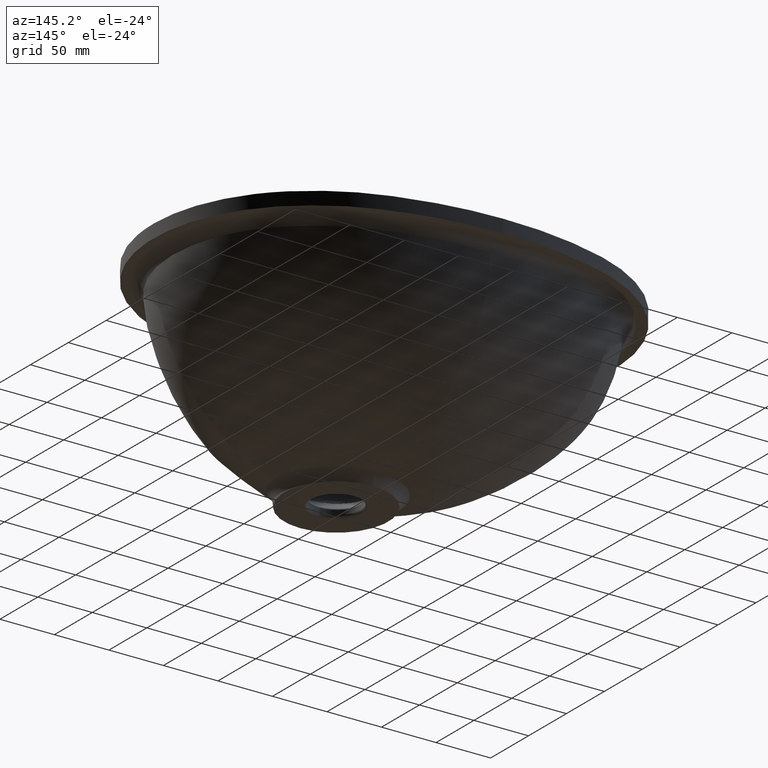
[diagram: clean part render]
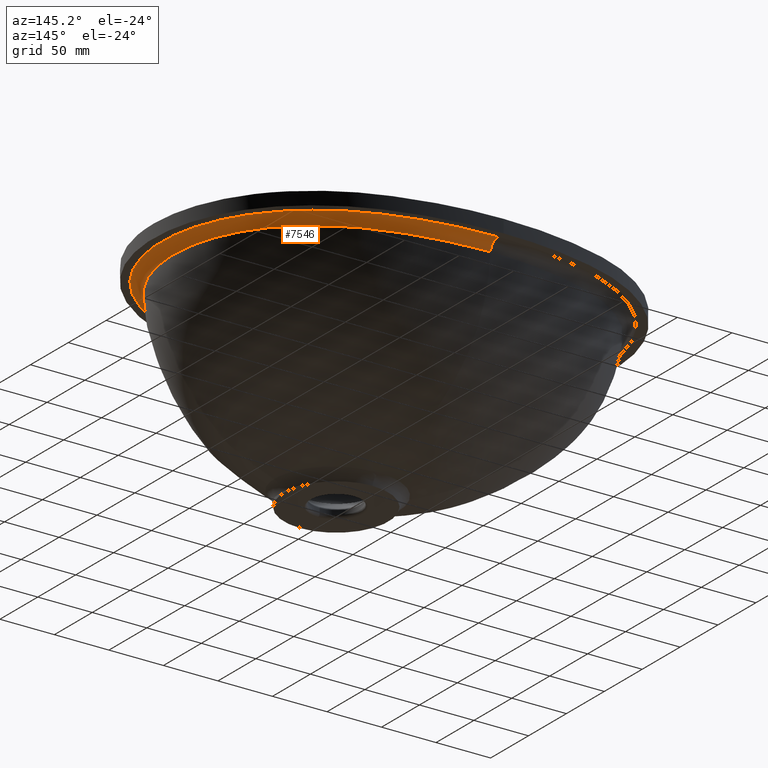
[diagram: same view with one face highlighted and labeled with its STEP entity id]
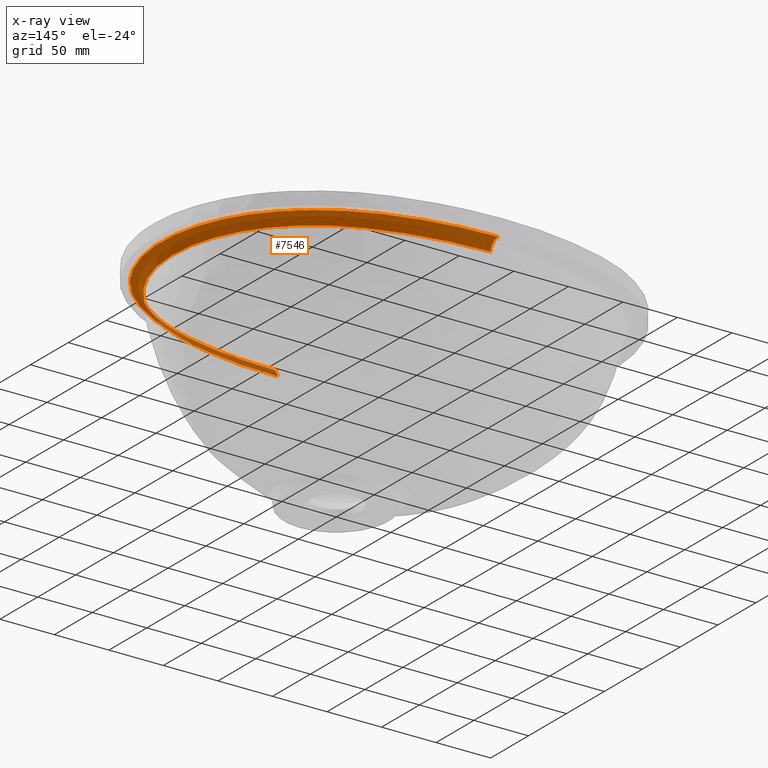
[diagram: x-ray of the same camera — body ghosted, the highlighted face saturated]
A machine part, auxiliary view. The second image highlights one B-rep face of the part: STEP entity #7546.
The next image is the same camera in x-ray: the body ghosted, the highlighted face saturated — about 9% of this face is hidden behind the body in this view.
In plain terms, the highlighted face is a freeform B-spline surface patch.
Its self-contained STEP definition (entity closure, byte-faithful):
#18 = CARTESIAN_POINT ( 'NONE',  ( 194.2250366712828200, 68.12367140144232300, 126.9999999991853500 ) ) ;
#32 = CARTESIAN_POINT ( 'NONE',  ( 188.0719466735449100, 0.1114616650749212700, 127.0000000000003100 ) ) ;
#70 = CARTESIAN_POINT ( 'NONE',  ( 154.9005430177258200, -40.95651994715553500, 127.0000000000001400 ) ) ;
#107 = CARTESIAN_POINT ( 'NONE',  ( 200.5840402443297700, 86.12680021619038900, 127.0000000000008100 ) ) ;
#120 = EDGE_CURVE ( 'NONE', #8673, #3376, #4285, .T. ) ;
#147 = CARTESIAN_POINT ( 'NONE',  ( 123.9140246264167500, -50.25841246445094200, 117.8655551322383400 ) ) ;
#187 = CARTESIAN_POINT ( 'NONE',  ( 95.77106760906895000, -62.50175757243268700, 117.9474333958384600 ) ) ;
#241 = CARTESIAN_POINT ( 'NONE',  ( 22.31981296784312400, -76.77377308540887700, 118.1843252122123900 ) ) ;
#258 = CARTESIAN_POINT ( 'NONE',  ( 81.16693012243423800, 202.5067391392387300, 126.9999999999998600 ) ) ;
#327 = CARTESIAN_POINT ( 'NONE',  ( 11.42930110567184000, 203.5120028624789400, 118.2025082499329300 ) ) ;
#338 = CARTESIAN_POINT ( 'NONE',  ( 197.0893837805692500, 21.93711378379371600, 127.0000000000002300 ) ) ;
#361 = CARTESIAN_POINT ( 'NONE',  ( 93.26591431587070200, 189.8052712781124600, 127.0000000000610400 ) ) ;
#371 = CARTESIAN_POINT ( 'NONE',  ( 174.2476793758141900, 127.4643934447638400, 118.7629863735993800 ) ) ;
#372 = CARTESIAN_POINT ( 'NONE',  ( 174.6340163153799700, -5.351033293677221400, 126.9999999999997000 ) ) ;
#377 = EDGE_CURVE ( 'NONE', #3376, #5524, #6480, .T. ) ;
#396 = CARTESIAN_POINT ( 'NONE',  ( 4.218625529479777500E-015, 204.5776412724846400, 127.0000000000000900 ) ) ;
#399 = CARTESIAN_POINT ( 'NONE',  ( 91.38824610656809000, 189.1167289216183200, 118.4213724935100500 ) ) ;
#408 = CARTESIAN_POINT ( 'NONE',  ( -2.626344176950837900E-014, 208.7627381365877600, 125.9212698865610500 ) ) ;
#409 = CARTESIAN_POINT ( 'NONE',  ( 178.7780904340522700, 1.798606271782220400, 126.9999999995265700 ) ) ;
#432 = CARTESIAN_POINT ( 'NONE',  ( 22.76713466433410800, 202.8536693605943500, 118.2141912961331500 ) ) ;
#444 = CARTESIAN_POINT ( 'NONE',  ( 182.5767553981397700, 9.191628075334044500, 126.9999999996284400 ) ) ;
#456 = CARTESIAN_POINT ( 'NONE',  ( 137.1369091711490600, 166.2781163788642700, 118.6537874686131700 ) ) ;
#477 = CARTESIAN_POINT ( 'NONE',  ( 182.7943112267975300, 12.10808075045436800, 118.1296669328933100 ) ) ;
#501 = CARTESIAN_POINT ( 'NONE',  ( 150.5568081784604700, 168.4616022830136900, 126.9999999999994700 ) ) ;
#506 = CARTESIAN_POINT ( 'NONE',  ( 98.44821292119769400, -72.09660239657206700, 127.0000000000000000 ) ) ;
#534 = CARTESIAN_POINT ( 'NONE',  ( 97.47183164759917400, 187.0560708818427400, 118.4537989317904700 ) ) ;
#539 = CARTESIAN_POINT ( 'NONE',  ( 92.27747198275845600, -64.52532731633857600, 126.9999999999695500 ) ) ;
#556 = CARTESIAN_POINT ( 'NONE',  ( -7.911119658695485900E-015, -79.14582187682005100, 122.7153786298223700 ) ) ;
#569 = CARTESIAN_POINT ( 'NONE',  ( 98.76982904107897800, 186.5822181822696800, 118.4609701323039100 ) ) ;
#575 = CARTESIAN_POINT ( 'NONE',  ( 99.28226334223055000, -61.29661710125368000, 117.9371891597392800 ) ) ;
#589 = CARTESIAN_POINT ( 'NONE',  ( -8.820904435027866700E-015, -78.02303311707666500, 120.5748353853620600 ) ) ;
#605 = CARTESIAN_POINT ( 'NONE',  ( 110.8165003135706400, 183.1079368014084100, 127.0000000002441400 ) ) ;
#611 = CARTESIAN_POINT ( 'NONE',  ( 152.6066683924622700, -42.80638913863121100, 127.0000000000000900 ) ) ;
#626 = CARTESIAN_POINT ( 'NONE',  ( 177.4156436913799800, 1.234901897086376300, 118.0408191846780900 ) ) ;
#639 = CARTESIAN_POINT ( 'NONE',  ( 144.3921694068097300, 160.7697117175865500, 118.6848983629441100 ) ) ;
#644 = CARTESIAN_POINT ( 'NONE',  ( 109.9594669916189200, -57.97247496056947100, 126.9999999997535100 ) ) ;
#649 = CARTESIAN_POINT ( 'NONE',  ( 117.6586929488236700, -64.52285129217068500, 126.9999999999999700 ) ) ;
#674 = CARTESIAN_POINT ( 'NONE',  ( 182.2297602490896200, 116.0937063520822100, 127.0000000000810700 ) ) ;
#680 = CARTESIAN_POINT ( 'NONE',  ( 11.50277752243899200, -78.57802014105938300, 126.9999999973749300 ) ) ;
#713 = CARTESIAN_POINT ( 'NONE',  ( 192.2481806757462300, 84.57925214905378700, 126.9999999992168800 ) ) ;
#750 = CARTESIAN_POINT ( 'NONE',  ( 182.6960636959991300, 132.5639196617247800, 126.9999999999998600 ) ) ;
#756 = CARTESIAN_POINT ( 'NONE',  ( 75.89099946249258700, -78.46387296310329900, 126.9999999999999700 ) ) ;
#788 = CARTESIAN_POINT ( 'NONE',  ( 189.8031972251652300, 119.7001649796173800, 126.9999999999999100 ) ) ;
#795 = CARTESIAN_POINT ( 'NONE',  ( 62.47622730744903000, -71.30298145728127700, 118.0714640457876500 ) ) ;
#802 = CARTESIAN_POINT ( 'NONE',  ( 201.0914367278710100, 83.21298562804814500, 127.0000000000000900 ) ) ;
#829 = CARTESIAN_POINT ( 'NONE',  ( 160.4762836249154000, 159.8588141609076000, 127.0000000000001700 ) ) ;
#836 = CARTESIAN_POINT ( 'NONE',  ( 81.79390173741971600, -66.67659127776751400, 117.9979440647581300 ) ) ;
#843 = CARTESIAN_POINT ( 'NONE',  ( 141.1508809761160100, 175.4943231690204500, 127.0000000000006400 ) ) ;
#871 = CARTESIAN_POINT ( 'NONE',  ( 192.6786816015123000, 53.06746445785291400, 118.4507477620341800 ) ) ;
#887 = CARTESIAN_POINT ( 'NONE',  ( 202.7734319829355100, 68.59791315512004000, 126.9999999999995300 ) ) ;
#902 = CARTESIAN_POINT ( 'NONE',  ( 167.1098304130275700, 137.8610105894233600, 118.7607070236318900 ) ) ;
#926 = CARTESIAN_POINT ( 'NONE',  ( 162.6304670550573200, -34.03576943789971000, 127.0000000000000300 ) ) ;
#963 = CARTESIAN_POINT ( 'NONE',  ( 140.8199911846267900, -51.58708339149797700, 127.0000000000001100 ) ) ;
#1006 = CARTESIAN_POINT ( 'NONE',  ( 23.53048467592618600, 212.7575627526904300, 126.9999999999996700 ) ) ;
#1007 = CARTESIAN_POINT ( 'NONE',  ( 150.0732859927268200, -31.96625189929561000, 117.8437518494887800 ) ) ;
#1045 = CARTESIAN_POINT ( 'NONE',  ( 87.83281963900580500, -64.96576832519653500, 117.9748898878531700 ) ) ;
#1079 = CARTESIAN_POINT ( 'NONE',  ( 46.78172317953216500, 210.0698516743904900, 126.9999999999997000 ) ) ;
#1097 = CARTESIAN_POINT ( 'NONE',  ( 11.16585227241817600, -77.36513238903032200, 118.1984696700783700 ) ) ;
#1148 = CARTESIAN_POINT ( 'NONE',  ( -3.930050956103187100E-014, 213.4394382769676200, 127.0000000000000000 ) ) ;
#1168 =( BOUNDED_SURFACE ( )  B_SPLINE_SURFACE ( 3, 2, ( 
 ( #3592, #396, #1220 ),
 ( #327, #4597, #10701 ),
 ( #432, #6352, #6315 ),
 ( #7216, #3883, #10629 ),
 ( #6389, #9840, #9874 ),
 ( #5589, #5520, #7251 ),
 ( #7321, #6424, #1185 ),
 ( #9731, #4632, #8874 ),
 ( #3738, #2131, #8120 ),
 ( #7180, #8910, #1295 ),
 ( #7290, #10594, #8983 ),
 ( #2164, #2945, #5449 ),
 ( #8154, #2055, #8047 ),
 ( #2910, #4739, #3771 ),
 ( #10734, #9765, #5482 ),
 ( #4667, #361, #8944 ),
 ( #3811, #9799, #6526 ),
 ( #3989, #2335, #2370 ),
 ( #3119, #1360, #3192 ),
 ( #534, #9192, #4807 ),
 ( #569, #4021, #8327 ),
 ( #6493, #7461, #10768 ),
 ( #4057, #605, #9054 ),
 ( #10049, #6632, #9944 ),
 ( #9909, #4774, #10837 ),
 ( #4912, #3053, #3918 ),
 ( #5622, #10016, #1500 ),
 ( #6599, #1394, #10910 ),
 ( #7354, #9157, #9980 ),
 ( #7389, #2299, #2229 ),
 ( #3155, #5763, #7496 ),
 ( #639, #6561, #501 ),
 ( #8221, #3085, #2264 ),
 ( #4841, #4875, #9088 ),
 ( #8290, #10873, #5728 ),
 ( #3954, #10804, #5658 ),
 ( #8253, #9120, #5693 ),
 ( #1429, #7427, #1464 ),
 ( #2519, #5880, #9342 ),
 ( #3342, #7695, #6744 ),
 ( #10164, #5026, #8477 ),
 ( #4205, #1655, #829 ),
 ( #4990, #4093, #10085 ),
 ( #6669, #9380, #8363 ),
 ( #3305, #3227, #7534 ),
 ( #4169, #6782, #7653 ),
 ( #4244, #8516, #9304 ),
 ( #3381, #2482, #5961 ),
 ( #10201, #10242, #750 ),
 ( #11062, #9227, #5921 ),
 ( #5061, #674, #788 ),
 ( #5101, #11022, #11098 ),
 ( #6822, #1696, #7614 ),
 ( #5802, #2406, #8400 ),
 ( #4948, #10947, #1538 ),
 ( #3266, #9264, #4131 ),
 ( #10124, #2445, #10982 ),
 ( #5841, #713, #6707 ),
 ( #1613, #1575, #7575 ),
 ( #8439, #2558, #8595 ),
 ( #1736, #18, #8556 ),
 ( #3423, #2596, #3461 ),
 ( #5144, #7735, #6001 ),
 ( #871, #9457, #4321 ),
 ( #4281, #10282, #9417 ),
 ( #6865, #4608, #8922 ),
 ( #5494, #10642, #10605 ),
 ( #3862, #5460, #2995 ),
 ( #5598, #3785, #9777 ),
 ( #3749, #9814, #338 ),
 ( #1336, #2886, #10678 ),
 ( #477, #1305, #5569 ),
 ( #9884, #444, #6327 ),
 ( #8959, #3029, #6365 ),
 ( #1197, #8886, #2143 ),
 ( #6467, #409, #9742 ),
 ( #5534, #2028, #7300 ),
 ( #7193, #372, #6434 ),
 ( #8995, #2069, #10712 ),
 ( #1272, #8133, #8059 ),
 ( #2922, #4644, #2173 ),
 ( #4748, #3825, #4678 ),
 ( #8023, #9852, #1233 ),
 ( #7228, #2107, #10743 ),
 ( #8097, #6402, #7265 ),
 ( #2958, #4714, #8164 ),
 ( #9028, #3893, #4884 ),
 ( #6981, #7333, #7860 ),
 ( #1940, #9914, #3125 ),
 ( #2340, #3090, #611 ),
 ( #3924, #4778, #6498 ),
 ( #4063, #2304, #1469 ),
 ( #4846, #4812, #10915 ),
 ( #8332, #2375, #3197 ),
 ( #1366, #9197, #10774 ),
 ( #10054, #10810, #4917 ),
 ( #4026, #5769, #9162 ),
 ( #1434, #7466, #10842 ),
 ( #3161, #644, #6637 ),
 ( #1506, #9950, #5664 ),
 ( #5626, #5699, #7359 ),
 ( #575, #7432, #9125 ),
 ( #2235, #7501, #9985 ),
 ( #3058, #3994, #9059 ),
 ( #6566, #8295, #506 ),
 ( #8226, #9093, #10021 ),
 ( #4880, #3959, #5733 ),
 ( #6605, #539, #10879 ),
 ( #6531, #1399, #7395 ),
 ( #2269, #8259, #3349 ),
 ( #10169, #2488, #5068 ),
 ( #8406, #4099, #2526 ),
 ( #5110, #5031, #11029 ),
 ( #836, #4212, #10952 ),
 ( #9232, #4136, #11105 ),
 ( #6830, #5887, #756 ),
 ( #6675, #3271, #5928 ),
 ( #795, #1703, #8483 ),
 ( #7702, #10130, #5969 ),
 ( #7661, #8368, #8523 ),
 ( #1544, #3389, #10091 ),
 ( #3234, #10987, #7540 ),
 ( #2411, #5807, #9349 ),
 ( #1663, #4954, #1580 ),
 ( #6789, #680, #10209 ),
 ( #9270, #4995, #5846 ) ),
 .UNSPECIFIED., .F., .F., .F. ) 
 B_SPLINE_SURFACE_WITH_KNOTS ( ( 4, 2, 2, 2, 2, 2, 2, 2, 2, 2, 2, 2, 2, 2, 2, 2, 2, 2, 2, 2, 2, 2, 2, 2, 2, 2, 2, 2, 2, 2, 2, 2, 2, 2, 2, 2, 2, 2, 2, 2, 2, 2, 2, 2, 2, 2, 2, 2, 2, 2, 2, 2, 2, 2, 2, 2, 2, 2, 2, 2, 2, 2, 4 ),
 ( 3, 3 ),
 ( -5.551115123125782700E-017, 0.03509961342044703300, 0.07019922684089412200, 0.07897413019600588200, 0.08774903355111765600, 0.09213648522867354300, 0.09433021106745148600, 0.09652393690622942900, 0.09871766274500737300, 0.1009113885837853200, 0.1052988402613412000, 0.1228486469715647500, 0.1403984536817883000, 0.1447859053593441600, 0.1491733570369000500, 0.1579482603920118200, 0.1623357120695677100, 0.1645294379083456500, 0.1667231637471235900, 0.1689168895859015400, 0.1711106154246794800, 0.1754980671022353700, 0.1930478738124589100, 0.2018227771675706900, 0.2105976805226824600, 0.2281474872329060100, 0.2456972939431295600, 0.2500847456206854400, 0.2544721972982413300, 0.2632471006533531100, 0.2807969073635766500, 0.2895718107186884300, 0.2939592623962443100, 0.2983467140738002000, 0.3158965207840237500, 0.3334463274942473000, 0.3422212308493590700, 0.3466086825269149600, 0.3509961342044708400, 0.3685459409146943900, 0.3860957476249179400, 0.3904831993024738300, 0.3926769251412517400, 0.3948706509800297100, 0.3992581026575856000, 0.4036455543351414900, 0.4211953610453649800, 0.4387451677555884700, 0.4431326194331443600, 0.4475200711107002500, 0.4562949744658120200, 0.4606824261433679100, 0.4628761519821458200, 0.4650698778209237900, 0.4672636036597017700, 0.4694573294984796800, 0.4738447811760355700, 0.4826196845311473400, 0.4913945878862591200, 0.5089443945964826600, 0.5177192979515944400, 0.5264942013067062100, 0.5615938147271533100 ),
 ( 0.0000000000000000000, 1.000000000000000000 ),
 .UNSPECIFIED. ) 
 GEOMETRIC_REPRESENTATION_ITEM ( )  RATIONAL_B_SPLINE_SURFACE ( (
 ( 1.000000000000000000, 0.7484152677210338400, 1.000000000000000000),
 ( 1.000000000000000000, 0.7484152677210338400, 1.000000000000000000),
 ( 1.000000000000000000, 0.7488057596245311100, 1.000000000000000000),
 ( 1.000000000000000000, 0.7502211053210298100, 1.000000000000000000),
 ( 1.000000000000000000, 0.7512455640130454300, 1.000000000000000000),
 ( 1.000000000000000000, 0.7528488519307696700, 1.000000000000000000),
 ( 1.000000000000000000, 0.7531857330765369100, 1.000000000000000000),
 ( 1.000000000000000000, 0.7538904853295401700, 1.000000000000000000),
 ( 1.000000000000000000, 0.7542595683747256300, 1.000000000000000000),
 ( 1.000000000000000000, 0.7548305635865781800, 1.000000000000000000),
 ( 1.000000000000000000, 0.7550235049526865500, 1.000000000000000000),
 ( 1.000000000000000000, 0.7553169298441616600, 1.000000000000000000),
 ( 1.000000000000000000, 0.7554154070409154800, 1.000000000000000000),
 ( 1.000000000000000000, 0.7556137166008193300, 1.000000000000000000),
 ( 1.000000000000000000, 0.7557140822694481400, 1.000000000000000000),
 ( 1.000000000000000000, 0.7559300551809817700, 1.000000000000000000),
 ( 1.000000000000000000, 0.7560437492186334900, 1.000000000000000000),
 ( 1.000000000000000000, 0.7562805190989730900, 1.000000000000000000),
 ( 1.000000000000000000, 0.7564029803296443700, 1.000000000000000000),
 ( 1.000000000000000000, 0.7567628453794952300, 1.000000000000000000),
 ( 1.000000000000000000, 0.7569997102077047300, 1.000000000000000000),
 ( 1.000000000000000000, 0.7581685286210496600, 1.000000000000000000),
 ( 1.000000000000000000, 0.7590538919551219600, 1.000000000000000000),
 ( 1.000000000000000000, 0.7607193689088325200, 1.000000000000000000),
 ( 1.000000000000000000, 0.7614995050833358600, 1.000000000000000000),
 ( 1.000000000000000000, 0.7624061561398000100, 1.000000000000000000),
 ( 1.000000000000000000, 0.7625842706544402300, 1.000000000000000000),
 ( 1.000000000000000000, 0.7629317134651424400, 1.000000000000000000),
 ( 1.000000000000000000, 0.7631012319608206900, 1.000000000000000000),
 ( 1.000000000000000000, 0.7635974013404540600, 1.000000000000000000),
 ( 1.000000000000000000, 0.7639116669090781900, 1.000000000000000000),
 ( 1.000000000000000000, 0.7643591697702064600, 1.000000000000000000),
 ( 1.000000000000000000, 0.7645043546465518600, 1.000000000000000000),
 ( 1.000000000000000000, 0.7647162660497026600, 1.000000000000000000),
 ( 1.000000000000000000, 0.7647859255458840900, 1.000000000000000000),
 ( 1.000000000000000000, 0.7649233072257738400, 1.000000000000000000),
 ( 1.000000000000000000, 0.7649905599567056200, 1.000000000000000000),
 ( 1.000000000000000000, 0.7651272187473877600, 1.000000000000000000),
 ( 1.000000000000000000, 0.7651961726302556300, 1.000000000000000000),
 ( 1.000000000000000000, 0.7653339467306812200, 1.000000000000000000),
 ( 1.000000000000000000, 0.7654032456764147100, 1.000000000000000000),
 ( 1.000000000000000000, 0.7656034060230526600, 1.000000000000000000),
 ( 1.000000000000000000, 0.7657277967098573600, 1.000000000000000000),
 ( 1.000000000000000000, 0.7663045043869196600, 1.000000000000000000),
 ( 1.000000000000000000, 0.7666214929480151800, 1.000000000000000000),
 ( 1.000000000000000000, 0.7668761784415130100, 1.000000000000000000),
 ( 1.000000000000000000, 0.7669242020097277700, 1.000000000000000000),
 ( 1.000000000000000000, 0.7669444827533711300, 1.000000000000000000),
 ( 1.000000000000000000, 0.7669166825684893300, 1.000000000000000000),
 ( 1.000000000000000000, 0.7667237317302051400, 1.000000000000000000),
 ( 1.000000000000000000, 0.7664488166919744000, 1.000000000000000000),
 ( 1.000000000000000000, 0.7656186926081095500, 1.000000000000000000),
 ( 1.000000000000000000, 0.7650634490225523000, 1.000000000000000000),
 ( 1.000000000000000000, 0.7641999151249525600, 1.000000000000000000),
 ( 1.000000000000000000, 0.7640189499242897600, 1.000000000000000000),
 ( 1.000000000000000000, 0.7636406358416449900, 1.000000000000000000),
 ( 1.000000000000000000, 0.7634429523673215100, 1.000000000000000000),
 ( 1.000000000000000000, 0.7628296519179494900, 1.000000000000000000),
 ( 1.000000000000000000, 0.7623928389386036600, 1.000000000000000000),
 ( 1.000000000000000000, 0.7609985539955478300, 1.000000000000000000),
 ( 1.000000000000000000, 0.7599556825037573300, 1.000000000000000000),
 ( 1.000000000000000000, 0.7582096978421021300, 1.000000000000000000),
 ( 1.000000000000000000, 0.7576027313085792500, 1.000000000000000000),
 ( 1.000000000000000000, 0.7566620688497302000, 1.000000000000000000),
 ( 1.000000000000000000, 0.7563432653115518300, 1.000000000000000000),
 ( 1.000000000000000000, 0.7556955907862008500, 1.000000000000000000),
 ( 1.000000000000000000, 0.7553662134575672700, 1.000000000000000000),
 ( 1.000000000000000000, 0.7537010405203681300, 1.000000000000000000),
 ( 1.000000000000000000, 0.7523206242869037200, 1.000000000000000000),
 ( 1.000000000000000000, 0.7495007263635068400, 1.000000000000000000),
 ( 1.000000000000000000, 0.7480668011816897800, 1.000000000000000000),
 ( 1.000000000000000000, 0.7459784388882871900, 1.000000000000000000),
 ( 1.000000000000000000, 0.7452961537413181900, 1.000000000000000000),
 ( 1.000000000000000000, 0.7442822415463612500, 1.000000000000000000),
 ( 1.000000000000000000, 0.7439454079068468200, 1.000000000000000000),
 ( 1.000000000000000000, 0.7432791211570433100, 1.000000000000000000),
 ( 1.000000000000000000, 0.7429497217225882200, 1.000000000000000000),
 ( 1.000000000000000000, 0.7413391381595640900, 1.000000000000000000),
 ( 1.000000000000000000, 0.7401956947303831600, 1.000000000000000000),
 ( 1.000000000000000000, 0.7383609573620026900, 1.000000000000000000),
 ( 1.000000000000000000, 0.7376140765683653100, 1.000000000000000000),
 ( 1.000000000000000000, 0.7369145316612402100, 1.000000000000000000),
 ( 1.000000000000000000, 0.7367856838610220600, 1.000000000000000000),
 ( 1.000000000000000000, 0.7366087232485525300, 1.000000000000000000),
 ( 1.000000000000000000, 0.7365505654340566100, 1.000000000000000000),
 ( 1.000000000000000000, 0.7364498260448088000, 1.000000000000000000),
 ( 1.000000000000000000, 0.7364074389034128700, 1.000000000000000000),
 ( 1.000000000000000000, 0.7363049728467639900, 1.000000000000000000),
 ( 1.000000000000000000, 0.7362706496276613100, 1.000000000000000000),
 ( 1.000000000000000000, 0.7362133491015098200, 1.000000000000000000),
 ( 1.000000000000000000, 0.7361970446199703800, 1.000000000000000000),
 ( 1.000000000000000000, 0.7361728915319095700, 1.000000000000000000),
 ( 1.000000000000000000, 0.7363374420869413000, 1.000000000000000000),
 ( 1.000000000000000000, 0.7369173866774763000, 1.000000000000000000),
 ( 1.000000000000000000, 0.7373321729286785900, 1.000000000000000000),
 ( 1.000000000000000000, 0.7379335935066000400, 1.000000000000000000),
 ( 1.000000000000000000, 0.7380581345698303800, 1.000000000000000000),
 ( 1.000000000000000000, 0.7383123526872560300, 1.000000000000000000),
 ( 1.000000000000000000, 0.7384419244417157500, 1.000000000000000000),
 ( 1.000000000000000000, 0.7388347947088501600, 1.000000000000000000),
 ( 1.000000000000000000, 0.7391022030839985400, 1.000000000000000000),
 ( 1.000000000000000000, 0.7394994763514398700, 1.000000000000000000),
 ( 1.000000000000000000, 0.7396312724133368200, 1.000000000000000000),
 ( 1.000000000000000000, 0.7398266130521864400, 1.000000000000000000),
 ( 1.000000000000000000, 0.7398898210064552800, 1.000000000000000000),
 ( 1.000000000000000000, 0.7400227965663477300, 1.000000000000000000),
 ( 1.000000000000000000, 0.7400939605130838500, 1.000000000000000000),
 ( 1.000000000000000000, 0.7402471589863071100, 1.000000000000000000),
 ( 1.000000000000000000, 0.7403308378611478400, 1.000000000000000000),
 ( 1.000000000000000000, 0.7405022300464384500, 1.000000000000000000),
 ( 1.000000000000000000, 0.7405884773822537500, 1.000000000000000000),
 ( 1.000000000000000000, 0.7408484879705132800, 1.000000000000000000),
 ( 1.000000000000000000, 0.7410235191473204500, 1.000000000000000000),
 ( 1.000000000000000000, 0.7415506231645796500, 1.000000000000000000),
 ( 1.000000000000000000, 0.7419058161986106200, 1.000000000000000000),
 ( 1.000000000000000000, 0.7426179440760908300, 1.000000000000000000),
 ( 1.000000000000000000, 0.7429739690664932700, 1.000000000000000000),
 ( 1.000000000000000000, 0.7440253312563843700, 1.000000000000000000),
 ( 1.000000000000000000, 0.7447035138027697800, 1.000000000000000000),
 ( 1.000000000000000000, 0.7456284497264060700, 1.000000000000000000),
 ( 1.000000000000000000, 0.7459214837081696900, 1.000000000000000000),
 ( 1.000000000000000000, 0.7464685894091714900, 1.000000000000000000),
 ( 1.000000000000000000, 0.7467227349042285800, 1.000000000000000000),
 ( 1.000000000000000000, 0.7478734879748032400, 1.000000000000000000),
 ( 1.000000000000000000, 0.7484046647008872900, 1.000000000000000000),
 ( 1.000000000000000000, 0.7484046647008872900, 1.000000000000000000) ) ) 
 REPRESENTATION_ITEM ( '' )  SURFACE ( )  );
#1185 = CARTESIAN_POINT ( 'NONE',  ( 75.47008626799529900, 204.0116533253780900, 126.9999999999998300 ) ) ;
#1196 = CARTESIAN_POINT ( 'NONE',  ( 192.3237465289262200, 48.86585200819671800, 118.4208327365605800 ) ) ;
#1197 = CARTESIAN_POINT ( 'NONE',  ( 179.2366043928340400, 4.672873337882422500, 118.0690931796842200 ) ) ;
#1220 = CARTESIAN_POINT ( 'NONE',  ( 3.930050956103211700E-014, 213.4394382769676500, 127.0000000000000900 ) ) ;
#1221 = FACE_OUTER_BOUND ( 'NONE', #2312, .T. ) ;
#1232 = CARTESIAN_POINT ( 'NONE',  ( 192.6780439779566100, 53.05359686051348700, 118.4506523703300600 ) ) ;
#1233 = CARTESIAN_POINT ( 'NONE',  ( 161.5501887663400900, -35.06428537596335100, 127.0000000000000900 ) ) ;
#1262 = CARTESIAN_POINT ( 'NONE',  ( 0.0000000000000000000, 203.5120028635965400, 118.2025082591587100 ) ) ;
#1272 = CARTESIAN_POINT ( 'NONE',  ( 164.2258540771768500, -17.95918442076104400, 117.9035212363137500 ) ) ;
#1295 = CARTESIAN_POINT ( 'NONE',  ( 88.25553394724984500, 200.4588285436509000, 127.0000000000006400 ) ) ;
#1305 = CARTESIAN_POINT ( 'NONE',  ( 183.7188889617930000, 11.70442149452171600, 126.9999999988527700 ) ) ;
#1336 = CARTESIAN_POINT ( 'NONE',  ( 185.8830396995723800, 19.68414617087283600, 118.1920400161727400 ) ) ;
#1360 = CARTESIAN_POINT ( 'NONE',  ( 95.92302983136214300, 188.9215921029623900, 127.0000000000100900 ) ) ;
#1366 = CARTESIAN_POINT ( 'NONE',  ( 121.0089797629174100, -51.83750530239906600, 117.8731700352887500 ) ) ;
#1394 = CARTESIAN_POINT ( 'NONE',  ( 135.1517272031143200, 169.3388089929113100, 126.9999999997741000 ) ) ;
#1399 = CARTESIAN_POINT ( 'NONE',  ( 91.59720076120856900, -64.73640578482100200, 127.0000000000206500 ) ) ;
#1414 = CARTESIAN_POINT ( 'NONE',  ( -3.148651991306118200E-015, -85.02330554624627700, 126.7785345104209800 ) ) ;
#1429 = CARTESIAN_POINT ( 'NONE',  ( 150.1922324167795500, 155.8980362570379400, 118.7083931240569800 ) ) ;
#1434 = CARTESIAN_POINT ( 'NONE',  ( 110.9090421280287300, -56.65150580601812900, 117.9021022794970000 ) ) ;
#1442 = EDGE_CURVE ( 'NONE', #1921, #8673, #3316, .T. ) ;
#1452 = CARTESIAN_POINT ( 'NONE',  ( 156.2940025858746100, -26.30254616022252300, 117.8631670419270700 ) ) ;
#1464 = CARTESIAN_POINT ( 'NONE',  ( 156.7036366773784300, 163.2929613478627000, 127.0000000000000000 ) ) ;
#1469 = CARTESIAN_POINT ( 'NONE',  ( 145.6414029595279900, -48.23245982644252900, 126.9999999999997600 ) ) ;
#1485 = CARTESIAN_POINT ( 'NONE',  ( 180.6403180482868200, 7.473340053905781500, 118.0919367373656100 ) ) ;
#1500 = CARTESIAN_POINT ( 'NONE',  ( 137.4804838046296400, 177.9821954624842100, 126.9999999999998300 ) ) ;
#1506 = CARTESIAN_POINT ( 'NONE',  ( 105.7776964147760900, -58.84816763529652700, 117.9175357059477000 ) ) ;
#1511 = CARTESIAN_POINT ( 'NONE',  ( 125.6751047436093000, -60.64564616918647700, 127.0000000000002000 ) ) ;
#1538 = CARTESIAN_POINT ( 'NONE',  ( 198.6497216049078800, 94.83116459103644000, 127.0000000000000900 ) ) ;
#1544 = CARTESIAN_POINT ( 'NONE',  ( 45.62953013491729600, -74.20859825165011600, 118.1279757008094200 ) ) ;
#1575 = CARTESIAN_POINT ( 'NONE',  ( 192.7126864362806200, 81.84336523195719300, 127.0000000010221600 ) ) ;
#1580 = CARTESIAN_POINT ( 'NONE',  ( 23.60530151221248100, -86.80294083334892700, 126.9999999999998900 ) ) ;
#1613 = CARTESIAN_POINT ( 'NONE',  ( 191.3509442414201900, 81.62301767033356700, 118.6248524982725700 ) ) ;
#1653 = ORIENTED_EDGE ( 'NONE', *, *, #7404, .F. ) ;
#1655 = CARTESIAN_POINT ( 'NONE',  ( 154.6978380842931800, 153.7577506052487600, 126.9999999998990900 ) ) ;
#1663 = CARTESIAN_POINT ( 'NONE',  ( 22.88902504834759500, -76.89275557460472000, 118.1862781310417700 ) ) ;
#1670 = CARTESIAN_POINT ( 'NONE',  ( 196.3041841627447800, 103.3829008895254400, 126.9999999999998900 ) ) ;
#1696 = CARTESIAN_POINT ( 'NONE',  ( 188.2926324459187100, 100.7751532777678400, 127.0000000001646200 ) ) ;
#1703 = CARTESIAN_POINT ( 'NONE',  ( 62.67324401915831800, -72.24489327830177400, 127.0000000002437700 ) ) ;
#1711 = CARTESIAN_POINT ( 'NONE',  ( 136.2381304082536200, 178.7938527787072500, 126.9999999999995300 ) ) ;
#1736 = CARTESIAN_POINT ( 'NONE',  ( 192.8993316337021600, 68.06120048321226100, 118.5506256891724800 ) ) ;
#1750 = CARTESIAN_POINT ( 'NONE',  ( 130.8369401812012400, -57.79382146134550900, 127.0000000000001400 ) ) ;
#1766 = CARTESIAN_POINT ( 'NONE',  ( 150.1404920860395300, 155.9724814144775600, 118.7081837834947000 ) ) ;
#1791 = CARTESIAN_POINT ( 'NONE',  ( 102.2086307986229600, 195.8583829262951800, 126.9999999999999400 ) ) ;
#1831 = CARTESIAN_POINT ( 'NONE',  ( 188.7478051509812100, 1.438828248111174900, 127.0000000000000000 ) ) ;
#1871 = CARTESIAN_POINT ( 'NONE',  ( 108.7866798382355300, -57.57722426724289000, 117.9084577785092400 ) ) ;
#1910 = CARTESIAN_POINT ( 'NONE',  ( 77.16549031516025500, -67.93508099564061800, 118.0156627668990000 ) ) ;
#1921 = VERTEX_POINT ( 'NONE', #5503 ) ;
#1929 = CARTESIAN_POINT ( 'NONE',  ( 36.21023867139607700, -75.44258247154789400, 118.1542037201157700 ) ) ;
#1940 = CARTESIAN_POINT ( 'NONE',  ( 148.5138101265918900, -33.28096608767668100, 117.8418893738717800 ) ) ;
#2028 = CARTESIAN_POINT ( 'NONE',  ( 178.1035693924029300, 0.5964879916083081200, 126.9999999999996900 ) ) ;
#2055 = CARTESIAN_POINT ( 'NONE',  ( 89.86707387678987400, 190.8845019122794000, 127.0000000000205100 ) ) ;
#2068 = CARTESIAN_POINT ( 'NONE',  ( 184.7821149589553900, 106.4141803593647500, 118.7263228635108000 ) ) ;
#2069 = CARTESIAN_POINT ( 'NONE',  ( 171.5680541657085900, -9.874637216972816500, 126.9999999995926700 ) ) ;
#2096 = CARTESIAN_POINT ( 'NONE',  ( 96.64730765975015500, 187.3506387839050000, 118.4492267596630800 ) ) ;
#2106 = CARTESIAN_POINT ( 'NONE',  ( 189.5813123341612500, 90.41104932103631600, 118.6659475462101800 ) ) ;
#2107 = CARTESIAN_POINT ( 'NONE',  ( 153.7317246172913200, -29.78181996133177400, 126.9999999998764500 ) ) ;
#2131 = CARTESIAN_POINT ( 'NONE',  ( 81.62674851277847700, 193.3390838857631000, 126.9999999997958900 ) ) ;
#2134 = CARTESIAN_POINT ( 'NONE',  ( 44.19794639065105500, 200.4106543035838400, 118.2541723869863100 ) ) ;
#2143 = CARTESIAN_POINT ( 'NONE',  ( 188.0719466735132800, 0.1114616649444347800, 127.0000000000003100 ) ) ;
#2164 = CARTESIAN_POINT ( 'NONE',  ( 88.81791245615022500, 189.9288957525033100, 118.4100730988409700 ) ) ;
#2172 = CARTESIAN_POINT ( 'NONE',  ( -3.090477465642104500E-015, 204.0224669355410200, 120.5750848027200100 ) ) ;
#2173 = CARTESIAN_POINT ( 'NONE',  ( 167.9295306246471300, -28.81546953786814300, 126.9999999999997600 ) ) ;
#2229 = CARTESIAN_POINT ( 'NONE',  ( 144.7557257341327700, 172.9380490021516400, 127.0000000000003400 ) ) ;
#2235 = CARTESIAN_POINT ( 'NONE',  ( 97.97483602880910800, -61.75575641711881800, 117.9410880434362000 ) ) ;
#2239 = CARTESIAN_POINT ( 'NONE',  ( -3.731130932096927500E-014, 211.0226945107678200, 126.7785443784044600 ) ) ;
#2264 = CARTESIAN_POINT ( 'NONE',  ( 151.6940260885240500, 167.5423146485517800, 126.9999999999996200 ) ) ;
#2269 = CARTESIAN_POINT ( 'NONE',  ( 89.98043164556260400, -64.31489794787116000, 117.9668709071775500 ) ) ;
#2282 = CARTESIAN_POINT ( 'NONE',  ( 0.0000000000000000000, -77.51262870691996900, 118.2021908429208600 ) ) ;
#2299 = CARTESIAN_POINT ( 'NONE',  ( 139.7468901549123400, 166.1237159727363600, 127.0000000005316300 ) ) ;
#2304 = CARTESIAN_POINT ( 'NONE',  ( 140.2578554507915100, -40.77345953371580800, 127.0000000004081200 ) ) ;
#2312 = EDGE_LOOP ( 'NONE', ( #3025, #1653, #4328, #5412 ) ) ;
#2322 = CARTESIAN_POINT ( 'NONE',  ( 187.4211851581751800, 24.27791214368194900, 118.2303544944566900 ) ) ;
#2335 = CARTESIAN_POINT ( 'NONE',  ( 95.26415100550806900, 189.1450536538720800, 127.0000000000508700 ) ) ;
#2340 = CARTESIAN_POINT ( 'NONE',  ( 146.3646147073388300, -35.03861969535722700, 117.8402018912628900 ) ) ;
#2345 = CARTESIAN_POINT ( 'NONE',  ( 23.60530151217486500, -86.80294083329360400, 127.0000000000000000 ) ) ;
#2357 = CARTESIAN_POINT ( 'NONE',  ( 182.4114967168617600, 11.29142629120636500, 118.1230318154800600 ) ) ;
#2370 = CARTESIAN_POINT ( 'NONE',  ( 98.06327978395734100, 197.3306135702158900, 126.9999999999999400 ) ) ;
#2375 = CARTESIAN_POINT ( 'NONE',  ( 126.2641908676266400, -49.83532875570072900, 126.9999999999998900 ) ) ;
#2406 = CARTESIAN_POINT ( 'NONE',  ( 190.1197357802820100, 94.09828060798004400, 126.9999999999597800 ) ) ;
#2411 = CARTESIAN_POINT ( 'NONE',  ( 37.11717178008541400, -75.33701140902721200, 118.1518957968438900 ) ) ;
#2445 = CARTESIAN_POINT ( 'NONE',  ( 191.4126304004248000, 88.67658269468768100, 127.0000000003921900 ) ) ;
#2482 = CARTESIAN_POINT ( 'NONE',  ( 174.0889813825839700, 130.5202719685390800, 126.9999999988428500 ) ) ;
#2488 = CARTESIAN_POINT ( 'NONE',  ( 89.55130075458610900, -65.36217609382237000, 126.9999999999694000 ) ) ;
#2519 = CARTESIAN_POINT ( 'NONE',  ( 150.7037847569774800, 155.4460475219790100, 118.7105035571777300 ) ) ;
#2526 = CARTESIAN_POINT ( 'NONE',  ( 90.04087170905380300, -74.68041038555431000, 126.9999999999998900 ) ) ;
#2532 = CARTESIAN_POINT ( 'NONE',  ( 202.3279534415866900, 74.45617226178508500, 127.0000000000001400 ) ) ;
#2558 = CARTESIAN_POINT ( 'NONE',  ( 193.8364220286115100, 73.61986617527726700, 126.9999999979519900 ) ) ;
#2572 = CARTESIAN_POINT ( 'NONE',  ( 187.1727471791371000, 124.9379328456165300, 127.0000000000003800 ) ) ;
#2596 = CARTESIAN_POINT ( 'NONE',  ( 194.2635751893070100, 59.87745213668787900, 127.0000000004082600 ) ) ;
#2611 = CARTESIAN_POINT ( 'NONE',  ( 139.9362243502284000, 176.3328059490287700, 127.0000000000004100 ) ) ;
#2627 = CARTESIAN_POINT ( 'NONE',  ( 168.7831864932771600, 135.6267089198461800, 118.7626801933349000 ) ) ;
#2651 = CARTESIAN_POINT ( 'NONE',  ( 194.3689139897211600, 108.9226482514704900, 127.0000000000003100 ) ) ;
#2690 = CARTESIAN_POINT ( 'NONE',  ( 182.6960636961157400, 132.5639196617297600, 127.0000000000003100 ) ) ;
#2730 = CARTESIAN_POINT ( 'NONE',  ( 107.4987474947019000, -58.12156368540419000, 117.9123490178151700 ) ) ;
#2786 = CARTESIAN_POINT ( 'NONE',  ( 47.26884687855129400, -73.96313396089392700, 118.1229279438569900 ) ) ;
#2838 = CARTESIAN_POINT ( 'NONE',  ( 58.31517310022119500, 208.0639404307591200, 127.0000000000005500 ) ) ;
#2886 = CARTESIAN_POINT ( 'NONE',  ( 186.8762119794182600, 19.31899371615621800, 127.0000000022892800 ) ) ;
#2910 = CARTESIAN_POINT ( 'NONE',  ( 90.85824321194904500, 189.2842979063254300, 118.4190415776494200 ) ) ;
#2921 = CARTESIAN_POINT ( 'NONE',  ( 190.7734789530885600, 84.91529432506142400, 118.6410123170662700 ) ) ;
#2922 = CARTESIAN_POINT ( 'NONE',  ( 160.6168549012231500, -22.03664842774183800, 117.8814842560058300 ) ) ;
#2945 = CARTESIAN_POINT ( 'NONE',  ( 89.18314299797731300, 191.0965796183557200, 126.9999999999897500 ) ) ;
#2948 = CARTESIAN_POINT ( 'NONE',  ( 76.70245714202661700, 193.4510125247233800, 118.3597761051723300 ) ) ;
#2957 = CARTESIAN_POINT ( 'NONE',  ( 192.8884779390544400, 68.35108535484680200, 118.5524289523964300 ) ) ;
#2958 = CARTESIAN_POINT ( 'NONE',  ( 151.6714833929027900, -30.57533593201601700, 117.8471668749254600 ) ) ;
#2986 = CARTESIAN_POINT ( 'NONE',  ( 108.2419196666341700, 182.8341167476993400, 118.5125021627300900 ) ) ;
#2995 = CARTESIAN_POINT ( 'NONE',  ( 201.1266285868053100, 39.11134341075958100, 127.0000000000000000 ) ) ;
#3025 = ORIENTED_EDGE ( 'NONE', *, *, #1442, .F. ) ;
#3029 = CARTESIAN_POINT ( 'NONE',  ( 180.7275927744639100, 5.464511758222549500, 127.0000000001860600 ) ) ;
#3053 = CARTESIAN_POINT ( 'NONE',  ( 131.6257256714797000, 171.6685387535594900, 126.9999999999791400 ) ) ;
#3058 = CARTESIAN_POINT ( 'NONE',  ( 96.00681059449488000, -62.41922708213218100, 117.9468682628186400 ) ) ;
#3085 = CARTESIAN_POINT ( 'NONE',  ( 146.3656710245730900, 161.0070534191199300, 126.9999999998779400 ) ) ;
#3090 = CARTESIAN_POINT ( 'NONE',  ( 146.8483767453883500, -35.64072193227351400, 126.9999999997545500 ) ) ;
#3119 = CARTESIAN_POINT ( 'NONE',  ( 95.51424313933816300, 187.7426735905496300, 118.4429090852523500 ) ) ;
#3125 = CARTESIAN_POINT ( 'NONE',  ( 154.8890817621895300, -40.93959190469760000, 127.0000000000000900 ) ) ;
#3139 = CARTESIAN_POINT ( 'NONE',  ( 3.129308886487552400E-015, -87.44010256370737000, 127.0000000000000000 ) ) ;
#3155 = CARTESIAN_POINT ( 'NONE',  ( 141.1352437453193700, 163.3325037018894600, 118.6712189172608200 ) ) ;
#3161 = CARTESIAN_POINT ( 'NONE',  ( 109.6297711213546800, -57.21371610826557200, 117.9059291722342800 ) ) ;
#3179 = CARTESIAN_POINT ( 'NONE',  ( 157.2961692485530700, -25.31365008093624200, 117.8674057952847200 ) ) ;
#3192 = CARTESIAN_POINT ( 'NONE',  ( 98.75701506563679300, 197.0916953533184700, 126.9999999999999100 ) ) ;
#3197 = CARTESIAN_POINT ( 'NONE',  ( 130.8369401809960700, -57.79382146135437600, 126.9999999999998900 ) ) ;
#3202 = CARTESIAN_POINT ( 'NONE',  ( 106.7636666652843300, -69.16371290666867800, 126.9999999999998000 ) ) ;
#3214 = CARTESIAN_POINT ( 'NONE',  ( 160.2185429346880600, -22.29320528946886200, 117.8815228969564300 ) ) ;
#3227 = CARTESIAN_POINT ( 'NONE',  ( 164.2118375880539000, 143.9274745747335100, 126.9999999995088400 ) ) ;
#3234 = CARTESIAN_POINT ( 'NONE',  ( 39.96243687690999700, -74.98633460690913900, 118.1443056025821100 ) ) ;
#3266 = CARTESIAN_POINT ( 'NONE',  ( 189.7403999531704800, 89.72699105283766100, 118.6629396989060700 ) ) ;
#3271 = CARTESIAN_POINT ( 'NONE',  ( 71.00447812782401500, -70.36334927411664400, 126.9999999998777900 ) ) ;
#3305 = CARTESIAN_POINT ( 'NONE',  ( 163.0927714727380600, 142.9732192822691800, 118.7541696919314200 ) ) ;
#3316 = B_SPLINE_CURVE_WITH_KNOTS ( 'NONE', 3,
 ( #3892, #6502, #2239, #408, #6401, #10813, #10711, #2172, #8163, #5667 ),
 .UNSPECIFIED., .F., .F.,
 ( 4, 2, 2, 2, 4 ),
 ( 0.0000000000000000000, 0.2500000000000000000, 0.5000000000000000000, 0.7500000000000000000, 1.000000000000000000 ),
 .UNSPECIFIED. ) ;
#3342 = CARTESIAN_POINT ( 'NONE',  ( 151.7154877154285400, 154.5385669077256200, 118.7147209055323000 ) ) ;
#3349 = CARTESIAN_POINT ( 'NONE',  ( 92.85022330735174000, -73.84537143217130500, 127.0000000000003100 ) ) ;
#3376 = VERTEX_POINT ( 'NONE', #8798 ) ;
#3381 = CARTESIAN_POINT ( 'NONE',  ( 172.8495440389347100, 129.7180868056377400, 118.7640767892894900 ) ) ;
#3389 = CARTESIAN_POINT ( 'NONE',  ( 45.77637927414974000, -75.20506238156480100, 127.0000000002866600 ) ) ;
#3397 = CARTESIAN_POINT ( 'NONE',  ( 147.1068146593672700, 171.1794588276602000, 127.0000000000004400 ) ) ;
#3423 = CARTESIAN_POINT ( 'NONE',  ( 192.9754461437136700, 59.89488759898831200, 118.4976321440646000 ) ) ;
#3437 = CARTESIAN_POINT ( 'NONE',  ( 145.6414029595671000, -48.23245982636935000, 127.0000000000000300 ) ) ;
#3461 = CARTESIAN_POINT ( 'NONE',  ( 202.8643978435927400, 59.77946751456504900, 127.0000000000000000 ) ) ;
#3475 = CARTESIAN_POINT ( 'NONE',  ( 114.4069799109178300, 190.9021920782639700, 127.0000000000002000 ) ) ;
#3491 = CARTESIAN_POINT ( 'NONE',  ( 152.1967558148736800, 154.1387590912898100, 118.7170432382145000 ) ) ;
#3515 = CARTESIAN_POINT ( 'NONE',  ( 201.1266285866700800, 39.11134341048797600, 127.0000000000007000 ) ) ;
#3592 = CARTESIAN_POINT ( 'NONE',  ( 1.848892746611746400E-029, 203.5120028635965600, 118.2025082591590300 ) ) ;
#3593 = CARTESIAN_POINT ( 'NONE',  ( 133.4341968816127900, -44.51856320310808700, 117.8464845001697100 ) ) ;
#3649 = CARTESIAN_POINT ( 'NONE',  ( 44.51374876260390300, -74.36945205724778400, 118.1313102429669500 ) ) ;
#3668 = CARTESIAN_POINT ( 'NONE',  ( 89.66965375474772800, 200.0414759162395900, 127.0000000000006700 ) ) ;
#3738 = CARTESIAN_POINT ( 'NONE',  ( 81.29953175164729400, 192.1848280672016400, 118.3781470313863500 ) ) ;
#3749 = CARTESIAN_POINT ( 'NONE',  ( 187.5903532566529500, 24.84159991060371600, 118.2349870180495100 ) ) ;
#3771 = CARTESIAN_POINT ( 'NONE',  ( 93.87763467073975200, 198.7113916972644500, 127.0000000000000900 ) ) ;
#3784 = CARTESIAN_POINT ( 'NONE',  ( 177.8460382894968700, 121.4901050775681500, 118.7589603301709900 ) ) ;
#3785 = CARTESIAN_POINT ( 'NONE',  ( 191.4492648553142300, 35.11850588638697000, 126.9999999992677900 ) ) ;
#3811 = CARTESIAN_POINT ( 'NONE',  ( 93.54400625650066600, 188.4105272181177500, 118.4320427343041000 ) ) ;
#3814 = CARTESIAN_POINT ( 'NONE',  ( 79.39242075268030900, 192.7193721055276400, 118.3704065638771800 ) ) ;
#3825 = CARTESIAN_POINT ( 'NONE',  ( 156.2667046646940900, -27.42813950252690700, 126.9999999997726000 ) ) ;
#3853 = CARTESIAN_POINT ( 'NONE',  ( 103.1515386880488600, 184.9844900809944800, 118.4851810372749400 ) ) ;
#3862 = CARTESIAN_POINT ( 'NONE',  ( 191.3451388747511700, 40.74235455758222500, 118.3612696781317200 ) ) ;
#3883 = CARTESIAN_POINT ( 'NONE',  ( 45.42399130112068700, 201.3548712636747100, 127.0000000008111400 ) ) ;
#3892 = CARTESIAN_POINT ( 'NONE',  ( -3.930050956103187100E-014, 213.4394382769676200, 127.0000000000000000 ) ) ;
#3893 = CARTESIAN_POINT ( 'NONE',  ( 151.6633771795502000, -31.61522627036693600, 127.0000000000203800 ) ) ;
#3918 = CARTESIAN_POINT ( 'NONE',  ( 136.2381304082195800, 178.7938527787044300, 126.9999999999996700 ) ) ;
#3924 = CARTESIAN_POINT ( 'NONE',  ( 145.2799307723690800, -35.90249292048781600, 117.8397217695705900 ) ) ;
#3954 = CARTESIAN_POINT ( 'NONE',  ( 148.6359104511587600, 157.2488320491540300, 118.7021532243794400 ) ) ;
#3959 = CARTESIAN_POINT ( 'NONE',  ( 93.62478746268287500, -64.10120122369663400, 127.0000000000306100 ) ) ;
#3975 = CARTESIAN_POINT ( 'NONE',  ( -5.831625309081313600E-015, -81.71217926423328500, 125.2856224672890000 ) ) ;
#3989 = CARTESIAN_POINT ( 'NONE',  ( 94.86142938124858400, 187.9669399071879400, 118.4392041911196100 ) ) ;
#3994 = CARTESIAN_POINT ( 'NONE',  ( 96.27831944952454500, -63.23639069102301800, 127.0000000000204200 ) ) ;
#4021 = CARTESIAN_POINT ( 'NONE',  ( 99.20774219841312900, 187.7648540455604400, 127.0000000001418700 ) ) ;
#4026 = CARTESIAN_POINT ( 'NONE',  ( 113.4579263795246100, -55.49175878434754600, 117.8945958769403900 ) ) ;
#4032 = CARTESIAN_POINT ( 'NONE',  ( 81.58324703754641400, -77.07319095886896300, 127.0000000000005300 ) ) ;
#4044 = CARTESIAN_POINT ( 'NONE',  ( 153.2241404974128000, -29.19424959006580500, 117.8516527526831700 ) ) ;
#4057 = CARTESIAN_POINT ( 'NONE',  ( 110.2765163369230900, 181.9171768644623100, 118.5232423490177500 ) ) ;
#4063 = CARTESIAN_POINT ( 'NONE',  ( 139.8063095847595900, -40.14753340781876300, 117.8390105174858600 ) ) ;
#4079 = CARTESIAN_POINT ( 'NONE',  ( 159.2576645530088500, -23.30971253936658600, 117.8765808208732000 ) ) ;
#4093 = CARTESIAN_POINT ( 'NONE',  ( 155.6875533045664800, 152.8148789715445400, 127.0000000000004800 ) ) ;
#4099 = CARTESIAN_POINT ( 'NONE',  ( 87.50366427628459600, -65.97631864028288400, 127.0000000000608700 ) ) ;
#4104 = CARTESIAN_POINT ( 'NONE',  ( 49.98078791540633100, -83.60086348918842700, 127.0000000000000300 ) ) ;
#4130 = CARTESIAN_POINT ( 'NONE',  ( 118.1980106563861600, 178.0215040765084800, 118.5640396738557200 ) ) ;
#4131 = CARTESIAN_POINT ( 'NONE',  ( 199.3491272243425400, 91.94477459171865500, 127.0000000000000900 ) ) ;
#4136 = CARTESIAN_POINT ( 'NONE',  ( 79.28655144916213300, -68.28958490156911400, 127.0000000005694300 ) ) ;
#4169 = CARTESIAN_POINT ( 'NONE',  ( 168.1296064332572700, 136.5093345262423800, 118.7619813173217100 ) ) ;
#4205 = CARTESIAN_POINT ( 'NONE',  ( 153.7024600048122500, 152.7063394724713400, 118.7229711500579900 ) ) ;
#4212 = CARTESIAN_POINT ( 'NONE',  ( 82.03205323130447400, -67.54751029242008500, 127.0000000000813000 ) ) ;
#4219 = CARTESIAN_POINT ( 'NONE',  ( 177.7705131765134800, 139.9949229249438600, 127.0000000000000000 ) ) ;
#4244 = CARTESIAN_POINT ( 'NONE',  ( 169.7474331975262800, 134.2881671153749900, 118.7634546316790700 ) ) ;
#4258 = CARTESIAN_POINT ( 'NONE',  ( 144.7557257341356100, 172.9380490021797000, 127.0000000000007000 ) ) ;
#4281 = CARTESIAN_POINT ( 'NONE',  ( 192.5786661301160300, 51.69935373604944600, 118.4411006023984800 ) ) ;
#4285 = B_SPLINE_CURVE_WITH_KNOTS ( 'NONE', 3,
 ( #1262, #8948, #9842, #2134, #8986, #8086, #5523, #2948, #3814, #8123, #6392, #399, #4705, #9804, #2096, #3853, #2986, #4130, #10123, #4989, #6706, #456, #6446, #4728, #8268, #1766, #3491, #9489, #6030, #902, #2627, #8627, #7763, #6895, #371, #3784, #8058, #2068, #7227, #7192, #4643, #2106, #6326, #2921, #8921, #9776, #2957, #8958, #10641, #1232, #8096, #1196, #6364, #5493, #8313, #2322, #6620, #4898, #2357, #8349, #1485, #7483, #626, #10898, #9179, #5750, #9213, #3214, #4079, #3179, #1452, #7449, #4044, #10037, #1007, #9589, #10414, #5271, #3593, #147, #7868, #6134, #6998, #1871, #2730, #8729, #4450, #10453, #187, #6173, #5312, #1045, #7039, #1910, #5365, #6228, #4472, #2786, #3649, #7057, #1929, #10510, #241, #1097, #7922, #6191 ),
 .UNSPECIFIED., .F., .F.,
 ( 4, 2, 2, 2, 2, 2, 2, 2, 2, 2, 2, 2, 2, 2, 2, 2, 2, 2, 2, 2, 2, 2, 2, 2, 2, 2, 2, 2, 2, 2, 2, 2, 2, 2, 2, 2, 2, 2, 2, 2, 2, 2, 2, 2, 2, 2, 2, 2, 2, 2, 2, 2, 4 ),
 ( 0.0000000000000000000, 0.03315316889986149500, 0.06630633779972298900, 0.07459463002468837100, 0.08288292224965374000, 0.09117121447461912200, 0.09531536058710179900, 0.09945950669958447700, 0.1160360911495151700, 0.1326126755994458700, 0.1409009678244111700, 0.1491892600493764900, 0.1574775522743417900, 0.1657658444993071500, 0.1823424289492377400, 0.1906307211742030200, 0.1947748672866856400, 0.1989190133991682600, 0.2154955978490984400, 0.2320721822990286500, 0.2362163284115111900, 0.2403604745239937300, 0.2486487667489588000, 0.2652253511988889000, 0.2735136434238539800, 0.2776577895363365700, 0.2818019356488191100, 0.2983785200987493800, 0.3149551045486795300, 0.3190992506611621300, 0.3232433967736447200, 0.3315316889986099100, 0.3481082734485402300, 0.3563965656735053600, 0.3605407117859879600, 0.3646848578984705500, 0.3688290040109530900, 0.3729731501234356800, 0.3812614423484007000, 0.3978380267983308000, 0.4144146112482610100, 0.4185587573607435500, 0.4227029034732259800, 0.4309911956981910500, 0.4351353418106735900, 0.4392794879231561300, 0.4475677801481212100, 0.4641443645980512500, 0.4807209490479814100, 0.4890092412729464800, 0.4972975334979115600, 0.5138741179478417700, 0.5304507023977718100 ),
 .UNSPECIFIED. ) ;
#4296 = CARTESIAN_POINT ( 'NONE',  ( 202.4452095267060100, 50.93357484948654000, 127.0000000000003800 ) ) ;
#4321 = CARTESIAN_POINT ( 'NONE',  ( 202.5516099026186800, 52.40985596432912500, 126.9999999999999700 ) ) ;
#4328 = ORIENTED_EDGE ( 'NONE', *, *, #377, .F. ) ;
#4336 = CARTESIAN_POINT ( 'NONE',  ( 198.2774387208529600, 96.26455102199503200, 126.9999999999998900 ) ) ;
#4374 = CARTESIAN_POINT ( 'NONE',  ( 202.1832243076645200, 47.97836642531789400, 127.0000000000003800 ) ) ;
#4450 = CARTESIAN_POINT ( 'NONE',  ( 101.0179246353184700, -60.68655487060517800, 117.9320250110367600 ) ) ;
#4472 = CARTESIAN_POINT ( 'NONE',  ( 55.50555196919938100, -72.63535585637133400, 118.0964400696185700 ) ) ;
#4491 = CARTESIAN_POINT ( 'NONE',  ( 96.67348142606093100, 197.8031667805812800, 127.0000000000000900 ) ) ;
#4597 = CARTESIAN_POINT ( 'NONE',  ( 11.47041460234099300, 204.5776412706814000, 126.9999999918034600 ) ) ;
#4608 = CARTESIAN_POINT ( 'NONE',  ( 193.5589133164732800, 48.83760534597728800, 126.9999999998351000 ) ) ;
#4632 = CARTESIAN_POINT ( 'NONE',  ( 78.85908479680840300, 194.1026476866991600, 126.9999999990190500 ) ) ;
#4643 = CARTESIAN_POINT ( 'NONE',  ( 188.9072308681883800, 93.13281691825810100, 118.6775453093945000 ) ) ;
#4644 = CARTESIAN_POINT ( 'NONE',  ( 161.2058052886342500, -22.58918328837166100, 127.0000000009074600 ) ) ;
#4667 = CARTESIAN_POINT ( 'NONE',  ( 92.87903351421854800, 188.6301073816036900, 118.4286047333440500 ) ) ;
#4678 = CARTESIAN_POINT ( 'NONE',  ( 162.6304670551183200, -34.03576943783506400, 126.9999999999997600 ) ) ;
#4705 = CARTESIAN_POINT ( 'NONE',  ( 92.70945915878209600, 188.6898864117335100, 118.4275744033360000 ) ) ;
#4714 = CARTESIAN_POINT ( 'NONE',  ( 152.1856387510919400, -31.15950235584695000, 127.0000000000309800 ) ) ;
#4728 = CARTESIAN_POINT ( 'NONE',  ( 143.7835893414827200, 161.2768702733518500, 118.6824321159967800 ) ) ;
#4739 = CARTESIAN_POINT ( 'NONE',  ( 91.23336797595811700, 190.4558309402853800, 126.9999999999797100 ) ) ;
#4748 = CARTESIAN_POINT ( 'NONE',  ( 155.7191069914318600, -26.85908406788463800, 117.8608601477750400 ) ) ;
#4774 = CARTESIAN_POINT ( 'NONE',  ( 125.6701044990422200, 175.4234766334104400, 127.0000000000818300 ) ) ;
#4778 = CARTESIAN_POINT ( 'NONE',  ( 145.7582645839337100, -36.50840090851975400, 126.9999999998976700 ) ) ;
#4807 = CARTESIAN_POINT ( 'NONE',  ( 100.8324985553833800, 196.3619531001649000, 126.9999999999999100 ) ) ;
#4812 = CARTESIAN_POINT ( 'NONE',  ( 135.7013207776425400, -43.94939604612979900, 126.9999999999998700 ) ) ;
#4827 = CARTESIAN_POINT ( 'NONE',  ( -4.979907409612940400E-015, -82.76330619982620400, 125.9212230532528200 ) ) ;
#4841 = CARTESIAN_POINT ( 'NONE',  ( 147.0583023121111000, 158.5836554369807600, 118.6958192514963600 ) ) ;
#4846 = CARTESIAN_POINT ( 'NONE',  ( 135.2671310606935200, -43.30627986248890000, 117.8438548907116400 ) ) ;
#4875 = CARTESIAN_POINT ( 'NONE',  ( 147.9749731009399900, 159.6798336766525500, 127.0000000000604400 ) ) ;
#4880 = CARTESIAN_POINT ( 'NONE',  ( 93.36419662902733300, -63.27367360380250000, 117.9547812904385200 ) ) ;
#4884 = CARTESIAN_POINT ( 'NONE',  ( 157.6986328819622800, -38.54189756272926100, 126.9999999999998600 ) ) ;
#4886 = CARTESIAN_POINT ( 'NONE',  ( 97.05314036887912700, -72.55060471370440200, 127.0000000000001700 ) ) ;
#4898 = CARTESIAN_POINT ( 'NONE',  ( 182.9703776728224500, 12.57298364516900200, 118.1335126603554500 ) ) ;
#4912 = CARTESIAN_POINT ( 'NONE',  ( 130.8764502400628900, 170.5102572258088000, 118.6252622807679000 ) ) ;
#4917 = CARTESIAN_POINT ( 'NONE',  ( 119.0054081558793700, -63.88932827226629000, 127.0000000000000000 ) ) ;
#4922 = CARTESIAN_POINT ( 'NONE',  ( 109.5081861073026100, -68.08237587878032600, 126.9999999999998300 ) ) ;
#4948 = CARTESIAN_POINT ( 'NONE',  ( 189.0934866352288000, 92.40505652517647700, 118.6744984009194800 ) ) ;
#4954 = CARTESIAN_POINT ( 'NONE',  ( 22.97983946197511100, -77.94211767808468500, 127.0000000008185700 ) ) ;
#4989 = CARTESIAN_POINT ( 'NONE',  ( 130.1897327417496800, 170.9727790179957800, 118.6221278066886500 ) ) ;
#4990 = CARTESIAN_POINT ( 'NONE',  ( 154.6790832016121200, 151.7723466678133100, 118.7267809070164600 ) ) ;
#4995 = CARTESIAN_POINT ( 'NONE',  ( -3.358295302015721700E-016, -78.57802014073124000, 127.0000000000000000 ) ) ;
#5026 = CARTESIAN_POINT ( 'NONE',  ( 153.1904640875149300, 155.1476852626135200, 127.0000000000507300 ) ) ;
#5031 = CARTESIAN_POINT ( 'NONE',  ( 86.13681479716437700, -66.37647480591887500, 126.9999999999593400 ) ) ;
#5061 = CARTESIAN_POINT ( 'NONE',  ( 180.9037137732129800, 115.4666214152919500, 118.7488723267309600 ) ) ;
#5068 = CARTESIAN_POINT ( 'NONE',  ( 92.14834881228219400, -74.05589164900743500, 126.9999999999998900 ) ) ;
#5076 = CARTESIAN_POINT ( 'NONE',  ( 202.8643978435589800, 59.77946751450789300, 126.9999999999995000 ) ) ;
#5101 = CARTESIAN_POINT ( 'NONE',  ( 185.1324013130989100, 105.4731769200387100, 118.7234362037985100 ) ) ;
#5110 = CARTESIAN_POINT ( 'NONE',  ( 85.89119162343523300, -65.52089466925697500, 117.9823165011106600 ) ) ;
#5117 = CARTESIAN_POINT ( 'NONE',  ( 161.5288508664886800, 158.8511962270464700, 126.9999999999997000 ) ) ;
#5144 = CARTESIAN_POINT ( 'NONE',  ( 192.9109258657513500, 57.16760084420600700, 118.4792301051492100 ) ) ;
#5158 = CARTESIAN_POINT ( 'NONE',  ( 186.6811370532484200, -2.509456186547570400, 127.0000000000003700 ) ) ;
#5193 = CARTESIAN_POINT ( 'NONE',  ( 176.0264429490157700, 142.3898965734469500, 126.9999999999999700 ) ) ;
#5230 = CARTESIAN_POINT ( 'NONE',  ( 161.5501887663498100, -35.06428537592331900, 126.9999999999997700 ) ) ;
#5271 = CARTESIAN_POINT ( 'NONE',  ( 138.0328863778043500, -41.41011005160476100, 117.8404383432933400 ) ) ;
#5312 = CARTESIAN_POINT ( 'NONE',  ( 91.80885497634892500, -63.76008926739762500, 117.9600480262740700 ) ) ;
#5365 = CARTESIAN_POINT ( 'NONE',  ( 71.78856381411661400, -69.25502975119513800, 118.0365935677738100 ) ) ;
#5412 = ORIENTED_EDGE ( 'NONE', *, *, #120, .F. ) ;
#5449 = CARTESIAN_POINT ( 'NONE',  ( 91.77405176784820600, 199.3773588045596600, 127.0000000000000000 ) ) ;
#5460 = CARTESIAN_POINT ( 'NONE',  ( 192.5158317930432500, 40.53580957064518500, 127.0000000003310000 ) ) ;
#5482 = CARTESIAN_POINT ( 'NONE',  ( 94.57756295282855800, 198.4865292729665500, 126.9999999999998300 ) ) ;
#5493 = CARTESIAN_POINT ( 'NONE',  ( 191.3071666116699700, 40.48909491767932400, 118.3593701255353500 ) ) ;
#5494 = CARTESIAN_POINT ( 'NONE',  ( 192.1871240563280900, 47.58771810492849900, 118.4115601103353300 ) ) ;
#5503 = CARTESIAN_POINT ( 'NONE',  ( -3.930050956103187100E-014, 213.4394382769676200, 127.0000000000000000 ) ) ;
#5520 = CARTESIAN_POINT ( 'NONE',  ( 70.54364505417521500, 196.2278975656039100, 127.0000000009370900 ) ) ;
#5523 = CARTESIAN_POINT ( 'NONE',  ( 71.31624408769100400, 194.8355038077299100, 118.3394448347655900 ) ) ;
#5524 = VERTEX_POINT ( 'NONE', #7764 ) ;
#5534 = CARTESIAN_POINT ( 'NONE',  ( 177.2867345061100400, 1.054665992318708100, 118.0394837049709900 ) ) ;
#5569 = CARTESIAN_POINT ( 'NONE',  ( 191.9141597068008000, 8.158067000440251300, 127.0000000000004100 ) ) ;
#5589 = CARTESIAN_POINT ( 'NONE',  ( 70.26830327120188700, 195.0930788292630200, 118.3356258215601300 ) ) ;
#5598 = CARTESIAN_POINT ( 'NONE',  ( 190.3204537244207300, 35.36951918680924900, 118.3196866746451100 ) ) ;
#5622 = CARTESIAN_POINT ( 'NONE',  ( 132.0489818643964700, 169.7452876456924900, 118.6306947936198400 ) ) ;
#5626 = CARTESIAN_POINT ( 'NONE',  ( 103.1906407945148500, -59.86826826819468300, 117.9254399292084700 ) ) ;
#5658 = CARTESIAN_POINT ( 'NONE',  ( 155.0517766509508100, 164.7282054914706500, 127.0000000000000900 ) ) ;
#5664 = CARTESIAN_POINT ( 'NONE',  ( 109.5081861072516200, -68.08237587882878500, 127.0000000000000300 ) ) ;
#5667 = CARTESIAN_POINT ( 'NONE',  ( 0.0000000000000000000, 203.5120028635965400, 118.2025082591587100 ) ) ;
#5693 = CARTESIAN_POINT ( 'NONE',  ( 155.6045943520186400, 164.2520839994043300, 127.0000000000000000 ) ) ;
#5699 = CARTESIAN_POINT ( 'NONE',  ( 103.4943370114021700, -60.65526129495854200, 127.0000000000816100 ) ) ;
#5728 = CARTESIAN_POINT ( 'NONE',  ( 153.9399156712994500, 165.6739522823106900, 127.0000000000000900 ) ) ;
#5733 = CARTESIAN_POINT ( 'NONE',  ( 96.35325006401026800, -72.76866289122160900, 127.0000000000000900 ) ) ;
#5739 = CARTESIAN_POINT ( 'NONE',  ( 101.2318567063791200, -71.16389917872723500, 127.0000000000001700 ) ) ;
#5750 = CARTESIAN_POINT ( 'NONE',  ( 164.8454227335724100, -17.08078332457523600, 117.9095639187996900 ) ) ;
#5763 = CARTESIAN_POINT ( 'NONE',  ( 141.9893820164473400, 164.4568649185468400, 127.0000000005279200 ) ) ;
#5769 = CARTESIAN_POINT ( 'NONE',  ( 113.8031125309175500, -56.23322445378562400, 126.9999999999588500 ) ) ;
#5774 = CARTESIAN_POINT ( 'NONE',  ( 114.9533447386870200, -65.75300026068805400, 127.0000000000000300 ) ) ;
#5802 = CARTESIAN_POINT ( 'NONE',  ( 188.7491057042771800, 93.73473964182693400, 118.6800296089251400 ) ) ;
#5807 = CARTESIAN_POINT ( 'NONE',  ( 37.23864341490784100, -76.35588896555125900, 126.9999999997949100 ) ) ;
#5813 = CARTESIAN_POINT ( 'NONE',  ( 90.04344916180744500, -74.69020215666742500, 127.0000000000005000 ) ) ;
#5841 = CARTESIAN_POINT ( 'NONE',  ( 190.8822109461418400, 84.32766152961896500, 118.6381782127153700 ) ) ;
#5846 = CARTESIAN_POINT ( 'NONE',  ( -3.129308886487555200E-015, -87.44010256370735600, 126.9999999999999700 ) ) ;
#5880 = CARTESIAN_POINT ( 'NONE',  ( 151.6598820862626000, 156.5217003704278500, 126.9999999999190700 ) ) ;
#5887 = CARTESIAN_POINT ( 'NONE',  ( 73.77226882328348300, -69.69756892903186000, 126.9999999994310700 ) ) ;
#5894 = CARTESIAN_POINT ( 'NONE',  ( 92.85379853977242700, -73.85895377927823800, 127.0000000000000900 ) ) ;
#5921 = CARTESIAN_POINT ( 'NONE',  ( 187.1727471793690800, 124.9379328456283000, 126.9999999999998600 ) ) ;
#5928 = CARTESIAN_POINT ( 'NONE',  ( 73.03968490086491300, -79.13949415744154700, 126.9999999999998900 ) ) ;
#5935 = CARTESIAN_POINT ( 'NONE',  ( 189.8031972252042000, 119.7001649798328600, 127.0000000000003100 ) ) ;
#5961 = CARTESIAN_POINT ( 'NONE',  ( 181.1151208458074700, 135.0673783085771300, 126.9999999999998900 ) ) ;
#5969 = CARTESIAN_POINT ( 'NONE',  ( 58.68994263088809000, -82.16364831818731300, 126.9999999999999700 ) ) ;
#5977 = CARTESIAN_POINT ( 'NONE',  ( 160.4762836248925500, 159.8588141609443500, 126.9999999999997300 ) ) ;
#6001 = CARTESIAN_POINT ( 'NONE',  ( 202.7977061467721600, 56.83476616096375300, 126.9999999999999700 ) ) ;
#6015 = CARTESIAN_POINT ( 'NONE',  ( 191.9141597069993300, 8.158067000495709200, 126.9999999999999700 ) ) ;
#6030 = CARTESIAN_POINT ( 'NONE',  ( 161.8973558634188200, 144.3626293177528900, 118.7512812989948100 ) ) ;
#6053 = CARTESIAN_POINT ( 'NONE',  ( 167.9295306248847600, -28.81546953761590000, 127.0000000000000600 ) ) ;
#6094 = CARTESIAN_POINT ( 'NONE',  ( 197.0893837807523700, 21.93711378395018500, 127.0000000000002000 ) ) ;
#6134 = CARTESIAN_POINT ( 'NONE',  ( 112.6334374174691000, -55.87275966467353100, 117.8970028886690500 ) ) ;
#6173 = CARTESIAN_POINT ( 'NONE',  ( 93.13224578306895300, -63.35075202503198700, 117.9554153341752900 ) ) ;
#6191 = CARTESIAN_POINT ( 'NONE',  ( 0.0000000000000000000, -77.51262870691996900, 118.2021908429208600 ) ) ;
#6228 = CARTESIAN_POINT ( 'NONE',  ( 60.95859482998025700, -71.60516790289298700, 118.0769820337196400 ) ) ;
#6246 = CARTESIAN_POINT ( 'NONE',  ( 11.81270663028031700, 213.4394382769675900, 126.9999999999999700 ) ) ;
#6315 = CARTESIAN_POINT ( 'NONE',  ( 23.53048467588796200, 212.7575627529609200, 126.9999999999998300 ) ) ;
#6326 = CARTESIAN_POINT ( 'NONE',  ( 189.8971739260902900, 89.03797055218484500, 118.6598788319221400 ) ) ;
#6327 = CARTESIAN_POINT ( 'NONE',  ( 190.7065812897234000, 5.453022571736037000, 127.0000000000000300 ) ) ;
#6352 = CARTESIAN_POINT ( 'NONE',  ( 22.83848247392060300, 203.9273157116659800, 126.9999999991869700 ) ) ;
#6364 = CARTESIAN_POINT ( 'NONE',  ( 192.1737348820590200, 47.46590732756187900, 118.4106743088593100 ) ) ;
#6365 = CARTESIAN_POINT ( 'NONE',  ( 188.7478051510183300, 1.438828248108180900, 127.0000000000000300 ) ) ;
#6389 = CARTESIAN_POINT ( 'NONE',  ( 56.42727022371477800, 198.3210709329666200, 118.2873650425086700 ) ) ;
#6392 = CARTESIAN_POINT ( 'NONE',  ( 87.41494031158016800, 190.3752471019745700, 118.4038758187030600 ) ) ;
#6401 = CARTESIAN_POINT ( 'NONE',  ( -2.112505447332265600E-014, 207.7116274974594600, 125.2856963657885100 ) ) ;
#6402 = CARTESIAN_POINT ( 'NONE',  ( 153.2198218589280400, -30.24284812342373400, 126.9999999999693000 ) ) ;
#6424 = CARTESIAN_POINT ( 'NONE',  ( 73.31891514039819000, 195.5466465539060400, 127.0000000009815700 ) ) ;
#6434 = CARTESIAN_POINT ( 'NONE',  ( 182.2841407557383200, -10.20804061158828400, 126.9999999999997000 ) ) ;
#6446 = CARTESIAN_POINT ( 'NONE',  ( 139.3848225587888700, 164.6448799059556300, 118.6636607181373200 ) ) ;
#6467 = CARTESIAN_POINT ( 'NONE',  ( 177.9492076905849600, 2.251335958994590900, 118.0492748188094700 ) ) ;
#6480 = B_SPLINE_CURVE_WITH_KNOTS ( 'NONE', 3,
 ( #2282, #10000, #589, #556, #6580, #3975, #4827, #1414, #8274, #3139 ),
 .UNSPECIFIED., .F., .F.,
 ( 4, 2, 2, 2, 4 ),
 ( 0.0000000000000000000, 0.2499999999999990600, 0.4999999999999981100, 0.7499999999999990000, 1.000000000000000000 ),
 .UNSPECIFIED. ) ;
#6493 = CARTESIAN_POINT ( 'NONE',  ( 105.2247037768141200, 184.1327634987385400, 118.4963728687906300 ) ) ;
#6498 = CARTESIAN_POINT ( 'NONE',  ( 151.4547052812991100, -43.72390073154211600, 126.9999999999997600 ) ) ;
#6502 = CARTESIAN_POINT ( 'NONE',  ( -4.321762770856778600E-014, 212.2308934528545000, 127.0000000000000300 ) ) ;
#6526 = CARTESIAN_POINT ( 'NONE',  ( 96.67216204037775600, 197.8001722686143200, 126.9999999999999400 ) ) ;
#6531 = CARTESIAN_POINT ( 'NONE',  ( 91.34169869964951300, -63.90127489775235100, 117.9617948429089400 ) ) ;
#6561 = CARTESIAN_POINT ( 'NONE',  ( 145.2808417860976200, 161.8790261576913600, 126.9999999997354100 ) ) ;
#6566 = CARTESIAN_POINT ( 'NONE',  ( 95.35102474692247700, -62.63568915293095100, 117.9487388561532100 ) ) ;
#6580 = CARTESIAN_POINT ( 'NONE',  ( -7.297441208194331600E-015, -79.90317821454328900, 123.6824708267286900 ) ) ;
#6599 = CARTESIAN_POINT ( 'NONE',  ( 134.3667905056478600, 168.1906572565451100, 118.6412953844232300 ) ) ;
#6605 = CARTESIAN_POINT ( 'NONE',  ( 92.02067664815284300, -63.69271813707703700, 117.9593170103687100 ) ) ;
#6620 = CARTESIAN_POINT ( 'NONE',  ( 185.6486303031754800, 19.01504919479008700, 118.1864789673711400 ) ) ;
#6632 = CARTESIAN_POINT ( 'NONE',  ( 120.7927255515431100, 178.1579645523764000, 126.9999999997564700 ) ) ;
#6637 = CARTESIAN_POINT ( 'NONE',  ( 113.5957135899243400, -66.34924288131433900, 127.0000000000000300 ) ) ;
#6644 = CARTESIAN_POINT ( 'NONE',  ( 119.0054081558925200, -63.88932827225900000, 127.0000000000001100 ) ) ;
#6669 = CARTESIAN_POINT ( 'NONE',  ( 159.4868125775870700, 147.0235495964102200, 118.7444476116730400 ) ) ;
#6675 = CARTESIAN_POINT ( 'NONE',  ( 70.79124147759489500, -69.45078718179233600, 118.0402039177430600 ) ) ;
#6706 = CARTESIAN_POINT ( 'NONE',  ( 132.5418291517581500, 169.4407581899106700, 118.6330334246083300 ) ) ;
#6707 = CARTESIAN_POINT ( 'NONE',  ( 200.5840402443067800, 86.12680021605190500, 127.0000000000006700 ) ) ;
#6718 = CARTESIAN_POINT ( 'NONE',  ( 41.21980369545027400, -84.84117780257207600, 126.9999999999999400 ) ) ;
#6744 = CARTESIAN_POINT ( 'NONE',  ( 158.3345396831445000, 161.8358492148615800, 127.0000000000000000 ) ) ;
#6782 = CARTESIAN_POINT ( 'NONE',  ( 169.3123645529092000, 137.3905341930049800, 127.0000000002446100 ) ) ;
#6789 = CARTESIAN_POINT ( 'NONE',  ( 11.46431323941525400, -77.51262870687369900, 118.2021908425387700 ) ) ;
#6795 = CARTESIAN_POINT ( 'NONE',  ( 157.2531578401138900, 162.8134000220638900, 126.9999999999995900 ) ) ;
#6822 = CARTESIAN_POINT ( 'NONE',  ( 186.9237245730933500, 100.3365472740290900, 118.7064320760148800 ) ) ;
#6830 = CARTESIAN_POINT ( 'NONE',  ( 73.55257223015547700, -68.79535183045446400, 118.0296256810756900 ) ) ;
#6837 = CARTESIAN_POINT ( 'NONE',  ( 137.4804838046128500, 177.9821954624699200, 127.0000000000003800 ) ) ;
#6865 = CARTESIAN_POINT ( 'NONE',  ( 192.3330190668668000, 48.96051728486575200, 118.4215144210952700 ) ) ;
#6880 = CARTESIAN_POINT ( 'NONE',  ( 199.6766174176683800, 90.48964943726178900, 127.0000000000007800 ) ) ;
#6895 = CARTESIAN_POINT ( 'NONE',  ( 173.5064874411131100, 128.6499134113995000, 118.7634989028031900 ) ) ;
#6918 = CARTESIAN_POINT ( 'NONE',  ( 181.1151208459740800, 135.0673783087890500, 127.0000000000000300 ) ) ;
#6956 = CARTESIAN_POINT ( 'NONE',  ( 152.6173657456319300, -42.82218891260006900, 127.0000000000000300 ) ) ;
#6981 = CARTESIAN_POINT ( 'NONE',  ( 149.5816661664115700, -32.38480218824805900, 117.8429001674187800 ) ) ;
#6998 = CARTESIAN_POINT ( 'NONE',  ( 111.3532569614210700, -56.45318564785079500, 117.9007869290414000 ) ) ;
#7039 = CARTESIAN_POINT ( 'NONE',  ( 85.17323836074801600, -65.73570231972080100, 117.9850357732532600 ) ) ;
#7057 = CARTESIAN_POINT ( 'NONE',  ( 38.98440810695142700, -75.10921873925313700, 118.1469489184483900 ) ) ;
#7180 = CARTESIAN_POINT ( 'NONE',  ( 85.40762163607492100, 190.9749192409394700, 118.3953828700744400 ) ) ;
#7192 = CARTESIAN_POINT ( 'NONE',  ( 188.5484518243087800, 94.48426825011540600, 118.6830899476985500 ) ) ;
#7193 = CARTESIAN_POINT ( 'NONE',  ( 173.8813556831863400, -4.858896018031966700, 117.9916411524009600 ) ) ;
#7216 = CARTESIAN_POINT ( 'NONE',  ( 45.26607255551976300, 200.2582377874009300, 118.2566241221516900 ) ) ;
#7227 = CARTESIAN_POINT ( 'NONE',  ( 186.6468087414982300, 101.1947722110101000, 118.7094870805995300 ) ) ;
#7228 = CARTESIAN_POINT ( 'NONE',  ( 153.2053477640570800, -29.20331370850234600, 117.8518481535994900 ) ) ;
#7251 = CARTESIAN_POINT ( 'NONE',  ( 72.61578992634106600, 204.7219142768267900, 126.9999999999999400 ) ) ;
#7265 = CARTESIAN_POINT ( 'NONE',  ( 159.3617596889512500, -37.06989550654015600, 127.0000000000001400 ) ) ;
#7290 = CARTESIAN_POINT ( 'NONE',  ( 86.77364573403663400, 190.5620455181089900, 118.4012090953316200 ) ) ;
#7300 = CARTESIAN_POINT ( 'NONE',  ( 185.9652407847472400, -3.804934913466961400, 126.9999999999997000 ) ) ;
#7321 = CARTESIAN_POINT ( 'NONE',  ( 73.03097003855306500, 194.4070336388780900, 118.3457724878122400 ) ) ;
#7333 = CARTESIAN_POINT ( 'NONE',  ( 150.0820392139274900, -32.97615861037176200, 126.9999999999588500 ) ) ;
#7354 = CARTESIAN_POINT ( 'NONE',  ( 135.5132654972254000, 167.4002892379157300, 118.6464692570930200 ) ) ;
#7359 = CARTESIAN_POINT ( 'NONE',  ( 106.7636666652646100, -69.16371290665452400, 126.9999999999999100 ) ) ;
#7389 = CARTESIAN_POINT ( 'NONE',  ( 138.9158834865658300, 164.9905281518266500, 118.6616176388436500 ) ) ;
#7395 = CARTESIAN_POINT ( 'NONE',  ( 94.25276307041501400, -73.41973713058146700, 127.0000000000003100 ) ) ;
#7404 = EDGE_CURVE ( 'NONE', #5524, #1921, #8801, .T. ) ;
#7427 = CARTESIAN_POINT ( 'NONE',  ( 151.1422718832764900, 156.9770884836807500, 127.0000000000708700 ) ) ;
#7432 = CARTESIAN_POINT ( 'NONE',  ( 99.56838967713868300, -62.10034601988635900, 126.9999999999590900 ) ) ;
#7449 = CARTESIAN_POINT ( 'NONE',  ( 154.2567248873721700, -28.24408845259294400, 117.8553707474095500 ) ) ;
#7461 = CARTESIAN_POINT ( 'NONE',  ( 105.7157733755979900, 185.3229193185429400, 126.9999999994313000 ) ) ;
#7466 = CARTESIAN_POINT ( 'NONE',  ( 111.2439363077192800, -57.40450454046639800, 127.0000000000413300 ) ) ;
#7483 = CARTESIAN_POINT ( 'NONE',  ( 178.7533399416928700, 3.695277244169481900, 118.0611503904944300 ) ) ;
#7496 = CARTESIAN_POINT ( 'NONE',  ( 147.1068146593526100, 171.1794588277098800, 126.9999999999994700 ) ) ;
#7501 = CARTESIAN_POINT ( 'NONE',  ( 98.25524367233559500, -62.56490331848481600, 126.9999999999593100 ) ) ;
#7507 = CARTESIAN_POINT ( 'NONE',  ( 113.5957135898961500, -66.34924288133970500, 126.9999999999998600 ) ) ;
#7534 = CARTESIAN_POINT ( 'NONE',  ( 170.5969987592647500, 149.3600746871614700, 126.9999999999994200 ) ) ;
#7540 = CARTESIAN_POINT ( 'NONE',  ( 41.21980369541245900, -84.84117780254916900, 126.9999999999998300 ) ) ;
#7546 = ADVANCED_FACE ( 'NONE', ( #1221 ), #1168, .F. ) ;
#7547 = CARTESIAN_POINT ( 'NONE',  ( 64.45467522346479000, -81.04833769278937400, 127.0000000000000300 ) ) ;
#7575 = CARTESIAN_POINT ( 'NONE',  ( 201.0914367280367400, 83.21298562809450100, 127.0000000000000000 ) ) ;
#7614 = CARTESIAN_POINT ( 'NONE',  ( 196.3041841628585800, 103.3829008895708300, 127.0000000000007500 ) ) ;
#7653 = CARTESIAN_POINT ( 'NONE',  ( 176.0264429491385800, 142.3898965733799900, 126.9999999999994200 ) ) ;
#7661 = CARTESIAN_POINT ( 'NONE',  ( 48.45275944597002400, -73.78145196995379300, 118.1192337998897100 ) ) ;
#7668 = CARTESIAN_POINT ( 'NONE',  ( 202.5516099026229700, 52.40985596422935100, 127.0000000000001700 ) ) ;
#7695 = CARTESIAN_POINT ( 'NONE',  ( 152.6842878414275900, 155.6067397909041600, 127.0000000000809500 ) ) ;
#7702 = CARTESIAN_POINT ( 'NONE',  ( 56.89154639228291900, -72.38573220912950000, 118.0916588645275600 ) ) ;
#7710 = CARTESIAN_POINT ( 'NONE',  ( 129.9954692296238100, 182.7597248373798200, 126.9999999999995300 ) ) ;
#7735 = CARTESIAN_POINT ( 'NONE',  ( 194.1848199326526600, 57.12211268157781100, 127.0000000007374000 ) ) ;
#7748 = CARTESIAN_POINT ( 'NONE',  ( 153.9560308638692400, 165.6907679767711600, 126.9999999999995900 ) ) ;
#7763 = CARTESIAN_POINT ( 'NONE',  ( 171.9804350786921500, 131.0020053631781400, 118.7639272934647200 ) ) ;
#7764 = CARTESIAN_POINT ( 'NONE',  ( 3.129308886487552400E-015, -87.44010256370737000, 127.0000000000000000 ) ) ;
#7786 = CARTESIAN_POINT ( 'NONE',  ( 171.8375745758513100, -24.39710212957506000, 126.9999999999997600 ) ) ;
#7827 = CARTESIAN_POINT ( 'NONE',  ( 198.6497216049585900, 94.83116459100614300, 126.9999999999995900 ) ) ;
#7860 = CARTESIAN_POINT ( 'NONE',  ( 156.0197789635722900, -39.99067099339765000, 126.9999999999998600 ) ) ;
#7868 = CARTESIAN_POINT ( 'NONE',  ( 118.9922714233626000, -52.88940889261397900, 117.8785784367090800 ) ) ;
#7922 = CARTESIAN_POINT ( 'NONE',  ( 5.584902014328104500, -77.51262870691996900, 118.2021908429206600 ) ) ;
#7938 = CARTESIAN_POINT ( 'NONE',  ( 84.01317452479463600, 201.7108864256681500, 127.0000000000006400 ) ) ;
#7975 = CARTESIAN_POINT ( 'NONE',  ( 92.48164447955800000, 199.1698917651719400, 127.0000000000001100 ) ) ;
#8023 = CARTESIAN_POINT ( 'NONE',  ( 154.7204583314814100, -27.80943694517808900, 117.8570626007527700 ) ) ;
#8047 = CARTESIAN_POINT ( 'NONE',  ( 92.47591427015058200, 199.1568863355583100, 127.0000000000000900 ) ) ;
#8058 = CARTESIAN_POINT ( 'NONE',  ( 180.3817196220873000, 116.5618424060956100, 118.7510590972100900 ) ) ;
#8059 = CARTESIAN_POINT ( 'NONE',  ( 171.8375745756133000, -24.39710212991009900, 126.9999999999998300 ) ) ;
#8086 = CARTESIAN_POINT ( 'NONE',  ( 68.61775317935206400, 195.4890037351043800, 118.3297347252011100 ) ) ;
#8096 = CARTESIAN_POINT ( 'NONE',  ( 192.5757484786924700, 51.65851777532662900, 118.4408130569038600 ) ) ;
#8097 = CARTESIAN_POINT ( 'NONE',  ( 152.6977181699855600, -29.66241810965295400, 117.8501346580437300 ) ) ;
#8120 = CARTESIAN_POINT ( 'NONE',  ( 84.01317452481312400, 201.7108864255600300, 127.0000000000006400 ) ) ;
#8123 = CARTESIAN_POINT ( 'NONE',  ( 84.75137023840788700, 191.1807749762817000, 118.3925028580897400 ) ) ;
#8133 = CARTESIAN_POINT ( 'NONE',  ( 164.8518540076441900, -18.49886577655355100, 127.0000000004080100 ) ) ;
#8154 = CARTESIAN_POINT ( 'NONE',  ( 89.49853971137339700, 189.7155392037610700, 118.4130485472858400 ) ) ;
#8163 = CARTESIAN_POINT ( 'NONE',  ( -1.305500845382323700E-015, 203.6573313768525700, 119.4022833277136300 ) ) ;
#8164 = CARTESIAN_POINT ( 'NONE',  ( 158.2552703774407800, -38.05457098106320800, 127.0000000000001400 ) ) ;
#8221 = CARTESIAN_POINT ( 'NONE',  ( 145.4657859750448900, 159.9028152958721900, 118.6893377661643100 ) ) ;
#8226 = CARTESIAN_POINT ( 'NONE',  ( 94.03030119831258600, -63.06265932567133300, 117.9526747003586600 ) ) ;
#8253 = CARTESIAN_POINT ( 'NONE',  ( 149.1584853912378300, 156.7992151828262300, 118.7042110430065200 ) ) ;
#8259 = CARTESIAN_POINT ( 'NONE',  ( 90.23352414321550400, -65.15510689383330600, 126.9999999999799600 ) ) ;
#8268 = CARTESIAN_POINT ( 'NONE',  ( 145.9344401759837000, 159.5420944350454700, 118.6913302504250800 ) ) ;
#8274 = CARTESIAN_POINT ( 'NONE',  ( -2.169638618537259500E-015, -86.23153109494653300, 127.0000000000000000 ) ) ;
#8290 = CARTESIAN_POINT ( 'NONE',  ( 147.5861559803314300, 158.1407992318907200, 118.6979501438892700 ) ) ;
#8295 = CARTESIAN_POINT ( 'NONE',  ( 95.61947061728493200, -63.45548265894446200, 126.9999999999898100 ) ) ;
#8313 = CARTESIAN_POINT ( 'NONE',  ( 190.2496710764448000, 35.01516488896439200, 118.3169253172437400 ) ) ;
#8327 = CARTESIAN_POINT ( 'NONE',  ( 102.2086307986111500, 195.8583829263138200, 126.9999999999995900 ) ) ;
#8332 = CARTESIAN_POINT ( 'NONE',  ( 125.8682534118757100, -49.15154267427439500, 117.8609430140648600 ) ) ;
#8337 = CARTESIAN_POINT ( 'NONE',  ( 102.6183753186537500, -70.67740034948548100, 126.9999999999998300 ) ) ;
#8349 = CARTESIAN_POINT ( 'NONE',  ( 181.2467538530320000, 8.742176967027926800, 118.1022495585709000 ) ) ;
#8363 = CARTESIAN_POINT ( 'NONE',  ( 166.7104845065020400, 153.7283742417971000, 127.0000000000005000 ) ) ;
#8368 = CARTESIAN_POINT ( 'NONE',  ( 48.60780130886676900, -74.76964874462491700, 127.0000000002040800 ) ) ;
#8400 = CARTESIAN_POINT ( 'NONE',  ( 198.2774387208242200, 96.26455102198538300, 127.0000000000007500 ) ) ;
#8406 = CARTESIAN_POINT ( 'NONE',  ( 87.25537531574649100, -65.12592525469411000, 117.9771290416718200 ) ) ;
#8439 = CARTESIAN_POINT ( 'NONE',  ( 192.4914836615600700, 73.49630054522461400, 118.5823587013089800 ) ) ;
#8477 = CARTESIAN_POINT ( 'NONE',  ( 158.8730701685741700, 161.3448194644093700, 127.0000000000001700 ) ) ;
#8483 = CARTESIAN_POINT ( 'NONE',  ( 64.45467522355768600, -81.04833769282576800, 126.9999999999998900 ) ) ;
#8490 = CARTESIAN_POINT ( 'NONE',  ( 3.129308886487552400E-015, -87.44010256370737000, 127.0000000000000000 ) ) ;
#8516 = CARTESIAN_POINT ( 'NONE',  ( 170.9501463354249000, 135.1436991113671400, 127.0000000011569900 ) ) ;
#8523 = CARTESIAN_POINT ( 'NONE',  ( 49.98078791539283800, -83.60086348923948700, 126.9999999999999700 ) ) ;
#8530 = CARTESIAN_POINT ( 'NONE',  ( 151.7068060181495900, 167.5556501014973800, 127.0000000000004400 ) ) ;
#8556 = CARTESIAN_POINT ( 'NONE',  ( 202.7734319828680600, 68.59791315500955000, 127.0000000000000000 ) ) ;
#8570 = CARTESIAN_POINT ( 'NONE',  ( 179.0149610849850600, -15.09344720580283700, 126.9999999999997300 ) ) ;
#8595 = CARTESIAN_POINT ( 'NONE',  ( 202.3279534412548600, 74.45617226169571300, 127.0000000000000000 ) ) ;
#8610 = CARTESIAN_POINT ( 'NONE',  ( 124.8787709369474900, 185.6542359558772800, 127.0000000000001700 ) ) ;
#8627 = CARTESIAN_POINT ( 'NONE',  ( 171.1937255127671400, 132.1711694518946600, 118.7638418451532400 ) ) ;
#8652 = CARTESIAN_POINT ( 'NONE',  ( 159.3653409249276600, -37.07518491962478200, 126.9999999999998300 ) ) ;
#8673 = VERTEX_POINT ( 'NONE', #10633 ) ;
#8691 = CARTESIAN_POINT ( 'NONE',  ( 202.0273576502084400, 46.49720195857270300, 127.0000000000006100 ) ) ;
#8729 = CARTESIAN_POINT ( 'NONE',  ( 103.6212267070557700, -59.70233377801417200, 117.9240964321386100 ) ) ;
#8798 = CARTESIAN_POINT ( 'NONE',  ( 0.0000000000000000000, -77.51262870691996900, 118.2021908429208600 ) ) ;
#8801 = B_SPLINE_CURVE_WITH_KNOTS ( 'NONE', 3,
 ( #8490, #10137, #2345, #10993, #6718, #10175, #4104, #10096, #7547, #11037, #4032, #5813, #5894, #4886, #10885, #5739, #8337, #3202, #4922, #7507, #5774, #649, #6644, #1511, #1750, #963, #3437, #6956, #70, #10257, #8652, #5230, #926, #6053, #7786, #8570, #9393, #9431, #5158, #32, #1831, #9511, #6015, #11112, #6094, #10297, #3515, #8691, #4374, #4296, #7668, #10373, #5076, #887, #2532, #802, #107, #6880, #10335, #7827, #4336, #1670, #2651, #5935, #2572, #2690, #6918, #4219, #5193, #9356, #10216, #5117, #5977, #11075, #6795, #7748, #8530, #3397, #4258, #843, #2611, #6837, #1711, #7710, #8610, #3475, #9473, #1791, #10560, #8840, #4491, #7975, #3668, #7938, #258, #9549, #9662, #2838, #1079, #1006, #6246, #1148 ),
 .UNSPECIFIED., .F., .F.,
 ( 4, 2, 2, 2, 2, 2, 2, 2, 2, 2, 2, 2, 2, 2, 2, 2, 2, 2, 2, 2, 2, 2, 2, 2, 2, 2, 2, 2, 2, 2, 2, 2, 2, 2, 2, 2, 2, 2, 2, 2, 2, 2, 2, 2, 2, 2, 2, 2, 2, 2, 4 ),
 ( 0.0000000000000000000, 0.03539936478898175800, 0.04424920598622720400, 0.05309904718347265000, 0.07079872957796352900, 0.08849841197245440800, 0.09734825316969981900, 0.1017731737683225400, 0.1061980943669452600, 0.1150479355641906800, 0.1194728561628133900, 0.1238977767614360800, 0.1415974591559268600, 0.1592971415504176300, 0.1681469827476630400, 0.1725719033462857500, 0.1769968239449084800, 0.1946965063393995300, 0.2123961887338906000, 0.2168211093325133600, 0.2212460299311361000, 0.2300958711283816500, 0.2477955535228726600, 0.2654952359173637400, 0.2699201565159865000, 0.2743450771146092600, 0.2831949183118547300, 0.3008946007063458300, 0.3097444419035914100, 0.3141693625022141700, 0.3185942831008369300, 0.3362939654953279700, 0.3539936478898189600, 0.3628434890870644300, 0.3716933302843099500, 0.3893930126788008900, 0.3938179332774236500, 0.3982428538760464700, 0.4070926950732921000, 0.4159425362705377300, 0.4203674568691605500, 0.4247923774677833700, 0.4424920598622748600, 0.4601917422567662900, 0.4646166628553891600, 0.4690415834540119800, 0.4778914246512577200, 0.4867412658485033600, 0.4955911070457490500, 0.5309904718347319100, 0.5663898366237147800 ),
 .UNSPECIFIED. ) ;
#8840 = CARTESIAN_POINT ( 'NONE',  ( 98.06518723574693300, 197.3349427710337000, 127.0000000000001700 ) ) ;
#8874 = CARTESIAN_POINT ( 'NONE',  ( 81.16693012287827000, 202.5067391389564200, 126.9999999999998300 ) ) ;
#8886 = CARTESIAN_POINT ( 'NONE',  ( 180.0896246651749100, 4.231686797713463100, 127.0000000004736300 ) ) ;
#8910 = CARTESIAN_POINT ( 'NONE',  ( 85.75598689329540000, 192.1363485185904900, 127.0000000001029200 ) ) ;
#8921 = CARTESIAN_POINT ( 'NONE',  ( 191.2633878068741400, 82.16185785501538400, 118.6275605099044600 ) ) ;
#8922 = CARTESIAN_POINT ( 'NONE',  ( 202.1832243076403600, 47.97836642530440100, 126.9999999999998600 ) ) ;
#8944 = CARTESIAN_POINT ( 'NONE',  ( 95.97484193495688500, 198.0309542779234600, 126.9999999999998300 ) ) ;
#8948 = CARTESIAN_POINT ( 'NONE',  ( 11.15724117309538600, 203.5120028635965100, 118.2025082591587600 ) ) ;
#8958 = CARTESIAN_POINT ( 'NONE',  ( 192.9781828667214000, 60.01781467015519000, 118.4984669471902900 ) ) ;
#8959 = CARTESIAN_POINT ( 'NONE',  ( 179.8624633039350200, 5.899651911685828600, 118.0791188173299800 ) ) ;
#8983 = CARTESIAN_POINT ( 'NONE',  ( 89.66539575038612500, 200.0318118401619600, 127.0000000000000000 ) ) ;
#8986 = CARTESIAN_POINT ( 'NONE',  ( 55.09857316212110600, 198.5641900506487300, 118.2835578705930000 ) ) ;
#8995 = CARTESIAN_POINT ( 'NONE',  ( 170.8599929840509300, -9.368014169585817900, 117.9577764981523600 ) ) ;
#9028 = CARTESIAN_POINT ( 'NONE',  ( 151.1528736438718300, -31.02926070413728600, 117.8459182981295000 ) ) ;
#9054 = CARTESIAN_POINT ( 'NONE',  ( 114.4069799111065700, 190.9021920783855000, 127.0000000000000300 ) ) ;
#9059 = CARTESIAN_POINT ( 'NONE',  ( 99.14501497057808900, -71.86681190272364000, 127.0000000000000600 ) ) ;
#9088 = CARTESIAN_POINT ( 'NONE',  ( 153.3808223845629200, 166.1435253988449300, 126.9999999999996200 ) ) ;
#9093 = CARTESIAN_POINT ( 'NONE',  ( 94.29322460689954300, -63.88763565625193800, 127.0000000000101600 ) ) ;
#9120 = CARTESIAN_POINT ( 'NONE',  ( 150.0970302811018900, 157.8844476433219200, 126.9999999999291300 ) ) ;
#9125 = CARTESIAN_POINT ( 'NONE',  ( 102.6183753186662400, -70.67740034949163400, 126.9999999999999100 ) ) ;
#9157 = CARTESIAN_POINT ( 'NONE',  ( 136.3099865060245600, 168.5447427181757400, 126.9999999997345300 ) ) ;
#9162 = CARTESIAN_POINT ( 'NONE',  ( 117.6586929488193600, -64.52285129215579200, 127.0000000000000900 ) ) ;
#9179 = CARTESIAN_POINT ( 'NONE',  ( 170.0239316700103400, -10.55240228449377300, 117.9496413917976300 ) ) ;
#9192 = CARTESIAN_POINT ( 'NONE',  ( 97.89793195100942600, 188.2374045305021500, 126.9999999999795800 ) ) ;
#9197 = CARTESIAN_POINT ( 'NONE',  ( 121.3873641188153300, -52.54306727136024300, 127.0000000004120200 ) ) ;
#9213 = CARTESIAN_POINT ( 'NONE',  ( 163.0420100233094200, -19.20039039853119400, 117.8974832792140100 ) ) ;
#9227 = CARTESIAN_POINT ( 'NONE',  ( 179.7681798567119000, 121.0122223494137900, 127.0000000019637100 ) ) ;
#9232 = CARTESIAN_POINT ( 'NONE',  ( 79.05443940601504900, -67.40814983723537100, 118.0084822671256100 ) ) ;
#9264 = CARTESIAN_POINT ( 'NONE',  ( 191.1105365988937300, 90.04283044553390900, 127.0000000003298800 ) ) ;
#9270 = CARTESIAN_POINT ( 'NONE',  ( 7.703719777548943400E-031, -77.51262870691996900, 118.2021908429209100 ) ) ;
#9304 = CARTESIAN_POINT ( 'NONE',  ( 177.7705131766792300, 139.9949229251571400, 126.9999999999998900 ) ) ;
#9342 = CARTESIAN_POINT ( 'NONE',  ( 157.2498014107616500, 162.8098976939950800, 127.0000000000000000 ) ) ;
#9349 = CARTESIAN_POINT ( 'NONE',  ( 38.28417695644419200, -85.20207552279086400, 126.9999999999998900 ) ) ;
#9356 = CARTESIAN_POINT ( 'NONE',  ( 170.5969987595121900, 149.3600746870255900, 126.9999999999999700 ) ) ;
#9380 = CARTESIAN_POINT ( 'NONE',  ( 160.5571273141354700, 148.0220679223332100, 127.0000000000005000 ) ) ;
#9393 = CARTESIAN_POINT ( 'NONE',  ( 182.2841407556438500, -10.20804061180761300, 127.0000000000000000 ) ) ;
#9417 = CARTESIAN_POINT ( 'NONE',  ( 202.4452095267303900, 50.93357484950341500, 126.9999999999998600 ) ) ;
#9431 = CARTESIAN_POINT ( 'NONE',  ( 185.9652407847697800, -3.804934913414033100, 126.9999999999999700 ) ) ;
#9457 = CARTESIAN_POINT ( 'NONE',  ( 193.9294954753947000, 52.98349846423829500, 126.9999999996308000 ) ) ;
#9473 = CARTESIAN_POINT ( 'NONE',  ( 109.0518686481881300, 193.2555950274066600, 126.9999999999999400 ) ) ;
#9489 = CARTESIAN_POINT ( 'NONE',  ( 158.1666368223603700, 148.4295029979145100, 118.7403310897905000 ) ) ;
#9511 = CARTESIAN_POINT ( 'NONE',  ( 190.7065812897948500, 5.453022571724424100, 126.9999999999999700 ) ) ;
#9549 = CARTESIAN_POINT ( 'NONE',  ( 75.47008626844005600, 204.0116533250956100, 126.9999999999998000 ) ) ;
#9589 = CARTESIAN_POINT ( 'NONE',  ( 146.8671611987751900, -34.65656644683215900, 117.8401248924827300 ) ) ;
#9662 = CARTESIAN_POINT ( 'NONE',  ( 72.61578992620256700, 204.7219142767122000, 127.0000000000005500 ) ) ;
#9731 = CARTESIAN_POINT ( 'NONE',  ( 78.54515389226827400, 192.9533800000000400, 118.3670147930390600 ) ) ;
#9742 = CARTESIAN_POINT ( 'NONE',  ( 186.6811370532819300, -2.509456186413681500, 127.0000000000003100 ) ) ;
#9765 = CARTESIAN_POINT ( 'NONE',  ( 91.91544534595220700, 190.2395111187112500, 126.9999999999386400 ) ) ;
#9776 = CARTESIAN_POINT ( 'NONE',  ( 192.4576033987054900, 73.88698164171698600, 118.5845938112645100 ) ) ;
#9777 = CARTESIAN_POINT ( 'NONE',  ( 200.0274750389548300, 33.31404411391096000, 127.0000000000002300 ) ) ;
#9799 = CARTESIAN_POINT ( 'NONE',  ( 93.93574302763498500, 189.5867665387208100, 126.9999999999490300 ) ) ;
#9804 = CARTESIAN_POINT ( 'NONE',  ( 95.33926829600154900, 187.8074782106659800, 118.4417421239564000 ) ) ;
#9814 = CARTESIAN_POINT ( 'NONE',  ( 188.6316408886896700, 24.51090173094099700, 127.0000000007354100 ) ) ;
#9840 = CARTESIAN_POINT ( 'NONE',  ( 56.62251511539809500, 199.4370331761909700, 126.9999999962434500 ) ) ;
#9842 = CARTESIAN_POINT ( 'NONE',  ( 22.22727587945317400, 202.8845281402752500, 118.2136435807677500 ) ) ;
#9852 = CARTESIAN_POINT ( 'NONE',  ( 155.2594143313282000, -28.38231131838171000, 127.0000000002473100 ) ) ;
#9874 = CARTESIAN_POINT ( 'NONE',  ( 58.31517309966582700, 208.0639404303004500, 126.9999999999999400 ) ) ;
#9884 = CARTESIAN_POINT ( 'NONE',  ( 181.6762878250501100, 9.609246001063869600, 118.1093179973174000 ) ) ;
#9909 = CARTESIAN_POINT ( 'NONE',  ( 124.9848505751382700, 174.2477294895030900, 118.5976194031009500 ) ) ;
#9914 = CARTESIAN_POINT ( 'NONE',  ( 149.0088129873261400, -33.87570845476582800, 127.0000000002456200 ) ) ;
#9944 = CARTESIAN_POINT ( 'NONE',  ( 124.8787709367578300, 185.6542359557562600, 127.0000000000000300 ) ) ;
#9950 = CARTESIAN_POINT ( 'NONE',  ( 106.0922335240019100, -59.62380364955105700, 127.0000000004927800 ) ) ;
#9980 = CARTESIAN_POINT ( 'NONE',  ( 141.1508809761162400, 175.4943231690351400, 127.0000000000003400 ) ) ;
#9985 = CARTESIAN_POINT ( 'NONE',  ( 101.2318567064199600, -71.16389917872784600, 127.0000000000000600 ) ) ;
#10000 = CARTESIAN_POINT ( 'NONE',  ( -9.116750360201754000E-015, -77.65792206219593700, 119.4019970089391300 ) ) ;
#10016 = CARTESIAN_POINT ( 'NONE',  ( 132.8102190384553300, 170.9003505568811600, 127.0000000002256700 ) ) ;
#10021 = CARTESIAN_POINT ( 'NONE',  ( 97.05231225916948300, -72.54745871597121700, 127.0000000000000000 ) ) ;
#10037 = CARTESIAN_POINT ( 'NONE',  ( 151.1321745353858100, -31.05496726977742800, 117.8456115399509200 ) ) ;
#10049 = CARTESIAN_POINT ( 'NONE',  ( 120.1565839658680400, 176.9746395813654900, 118.5738652953528900 ) ) ;
#10054 = CARTESIAN_POINT ( 'NONE',  ( 114.7265951712534200, -54.89458381867417800, 117.8909194790408700 ) ) ;
#10085 = CARTESIAN_POINT ( 'NONE',  ( 161.5288508664627600, 158.8511962271161900, 127.0000000000005000 ) ) ;
#10091 = CARTESIAN_POINT ( 'NONE',  ( 47.06738659127205400, -84.04061638982669500, 126.9999999999998300 ) ) ;
#10096 = CARTESIAN_POINT ( 'NONE',  ( 58.68994263085618700, -82.16364831829032800, 127.0000000000000600 ) ) ;
#10123 = CARTESIAN_POINT ( 'NONE',  ( 123.0637344791253000, 175.3592962117095900, 118.5882568071862600 ) ) ;
#10124 = CARTESIAN_POINT ( 'NONE',  ( 190.0432668294093900, 88.37665698026654600, 118.6569019948995700 ) ) ;
#10130 = CARTESIAN_POINT ( 'NONE',  ( 57.07349151819798300, -73.34728850955028200, 126.9999999995913000 ) ) ;
#10137 = CARTESIAN_POINT ( 'NONE',  ( 11.82236948980079600, -87.44010256370738400, 127.0000000000000600 ) ) ;
#10164 = CARTESIAN_POINT ( 'NONE',  ( 152.2149079760192800, 154.0836810783878000, 118.7168424808576400 ) ) ;
#10169 = CARTESIAN_POINT ( 'NONE',  ( 89.29944350712531800, -64.51941212450053300, 117.9694257063698000 ) ) ;
#10175 = CARTESIAN_POINT ( 'NONE',  ( 47.06738659122985500, -84.04061638980444100, 127.0000000000000000 ) ) ;
#10201 = CARTESIAN_POINT ( 'NONE',  ( 174.3156584346006900, 127.3961668129017500, 118.7632238763387300 ) ) ;
#10209 = CARTESIAN_POINT ( 'NONE',  ( 11.82231447335607300, -87.44010256321514900, 126.9999999999999700 ) ) ;
#10216 = CARTESIAN_POINT ( 'NONE',  ( 166.7104845064012300, 153.7283742420725300, 126.9999999999996400 ) ) ;
#10242 = CARTESIAN_POINT ( 'NONE',  ( 175.5719547733600300, 128.1705500634597900, 126.9999999990182100 ) ) ;
#10257 = CARTESIAN_POINT ( 'NONE',  ( 158.2582508548841000, -38.05897308585164800, 127.0000000000001700 ) ) ;
#10282 = CARTESIAN_POINT ( 'NONE',  ( 193.8213823357435500, 51.60222417450624700, 127.0000000001645000 ) ) ;
#10297 = CARTESIAN_POINT ( 'NONE',  ( 200.0274750387708600, 33.31404411375091700, 127.0000000000002000 ) ) ;
#10335 = CARTESIAN_POINT ( 'NONE',  ( 199.3491272242922300, 91.94477459174690600, 126.9999999999995600 ) ) ;
#10373 = CARTESIAN_POINT ( 'NONE',  ( 202.7977061467631800, 56.83476616115933700, 127.0000000000001400 ) ) ;
#10414 = CARTESIAN_POINT ( 'NONE',  ( 144.6888997640704400, -36.38974393156207300, 117.8392225668618200 ) ) ;
#10453 = CARTESIAN_POINT ( 'NONE',  ( 97.08617654203507600, -62.06087894936325700, 117.9437127542588300 ) ) ;
#10510 = CARTESIAN_POINT ( 'NONE',  ( 27.88404803757746100, -76.33036609116085500, 118.1739132323114300 ) ) ;
#10560 = CARTESIAN_POINT ( 'NONE',  ( 100.8324985553583600, 196.3619531001673100, 127.0000000000001700 ) ) ;
#10594 = CARTESIAN_POINT ( 'NONE',  ( 87.12866831136712200, 191.7259975928904200, 127.0000000000203900 ) ) ;
#10605 = CARTESIAN_POINT ( 'NONE',  ( 202.0273576501747400, 46.49720195850643700, 127.0000000000000000 ) ) ;
#10629 = CARTESIAN_POINT ( 'NONE',  ( 46.78172317957009300, 210.0698516741200000, 126.9999999999998300 ) ) ;
#10633 = CARTESIAN_POINT ( 'NONE',  ( 0.0000000000000000000, 203.5120028635965400, 118.2025082591587100 ) ) ;
#10641 = CARTESIAN_POINT ( 'NONE',  ( 192.9144517190290500, 57.23510659600909600, 118.4796971484551600 ) ) ;
#10642 = CARTESIAN_POINT ( 'NONE',  ( 193.4042373301868700, 47.45213257813856000, 126.9999999999174300 ) ) ;
#10678 = CARTESIAN_POINT ( 'NONE',  ( 195.2487843619723800, 16.35797167918368100, 127.0000000000004100 ) ) ;
#10701 = CARTESIAN_POINT ( 'NONE',  ( 11.81259121717012300, 213.4394382763119300, 127.0000000000000900 ) ) ;
#10711 = CARTESIAN_POINT ( 'NONE',  ( -8.579395416727255700E-015, 205.1452822710005500, 122.7155539312100400 ) ) ;
#10712 = CARTESIAN_POINT ( 'NONE',  ( 179.0149610852248300, -15.09344720546535600, 126.9999999999998300 ) ) ;
#10734 = CARTESIAN_POINT ( 'NONE',  ( 91.53699003859252100, 189.0666841589756500, 118.4220752495381800 ) ) ;
#10743 = CARTESIAN_POINT ( 'NONE',  ( 159.9115528852903500, -36.57246003367740200, 127.0000000000000900 ) ) ;
#10768 = CARTESIAN_POINT ( 'NONE',  ( 109.0518686482329500, 193.2555950273330400, 126.9999999999995900 ) ) ;
#10774 = CARTESIAN_POINT ( 'NONE',  ( 125.6751047436714400, -60.64564616915273400, 127.0000000000000000 ) ) ;
#10804 = CARTESIAN_POINT ( 'NONE',  ( 149.5690871123986500, 158.3367995078648400, 127.0000000000001000 ) ) ;
#10810 = CARTESIAN_POINT ( 'NONE',  ( 115.0768479186852900, -55.63027792858534300, 126.9999999998971100 ) ) ;
#10813 = CARTESIAN_POINT ( 'NONE',  ( -1.228176583514184300E-014, 205.9026407012766000, 123.6826089886321800 ) ) ;
#10837 = CARTESIAN_POINT ( 'NONE',  ( 129.9954692297576500, 182.7597248373928700, 126.9999999999996700 ) ) ;
#10842 = CARTESIAN_POINT ( 'NONE',  ( 114.9533447386951500, -65.75300026070118500, 127.0000000000000900 ) ) ;
#10873 = CARTESIAN_POINT ( 'NONE',  ( 148.5083479956092600, 159.2342763238496800, 127.0000000000000900 ) ) ;
#10879 = CARTESIAN_POINT ( 'NONE',  ( 94.95346945434704400, -73.20477924656862000, 127.0000000000000900 ) ) ;
#10885 = CARTESIAN_POINT ( 'NONE',  ( 98.44940105866776000, -72.10111614405751400, 127.0000000000001700 ) ) ;
#10898 = CARTESIAN_POINT ( 'NONE',  ( 173.1679301933335800, -5.974540580157769100, 117.9829583538583200 ) ) ;
#10910 = CARTESIAN_POINT ( 'NONE',  ( 139.9362243502104400, 176.3328059490150700, 126.9999999999998300 ) ) ;
#10915 = CARTESIAN_POINT ( 'NONE',  ( 140.8199911848350600, -51.58708339148714800, 126.9999999999998900 ) ) ;
#10947 = CARTESIAN_POINT ( 'NONE',  ( 190.4642511116262300, 92.75265926584754100, 126.9999999996704200 ) ) ;
#10952 = CARTESIAN_POINT ( 'NONE',  ( 84.40331441229585600, -76.27886135813469100, 127.0000000000000000 ) ) ;
#10982 = CARTESIAN_POINT ( 'NONE',  ( 199.6766174176793800, 90.48964943733270200, 127.0000000000006700 ) ) ;
#10987 = CARTESIAN_POINT ( 'NONE',  ( 40.09264569949900900, -75.99808918153233600, 126.9999999997133000 ) ) ;
#10993 = CARTESIAN_POINT ( 'NONE',  ( 38.28417695645161000, -85.20207552280494700, 126.9999999999999700 ) ) ;
#11022 = CARTESIAN_POINT ( 'NONE',  ( 186.4915605050960900, 105.9771752537980500, 126.9999999999186700 ) ) ;
#11029 = CARTESIAN_POINT ( 'NONE',  ( 88.63341547443504000, -75.08736695703382200, 127.0000000000000000 ) ) ;
#11037 = CARTESIAN_POINT ( 'NONE',  ( 75.90135479339001300, -78.50321297901744800, 127.0000000000000300 ) ) ;
#11062 = CARTESIAN_POINT ( 'NONE',  ( 178.4663456944608400, 120.3234196011225700, 118.7573052869618200 ) ) ;
#11075 = CARTESIAN_POINT ( 'NONE',  ( 158.3386656831509400, 161.8401545655387100, 126.9999999999997600 ) ) ;
#11098 = CARTESIAN_POINT ( 'NONE',  ( 194.3689139897591100, 108.9226482516877900, 126.9999999999999100 ) ) ;
#11105 = CARTESIAN_POINT ( 'NONE',  ( 81.57282661456952200, -77.03360365735935000, 126.9999999999999700 ) ) ;
#11112 = CARTESIAN_POINT ( 'NONE',  ( 195.2487843615737100, 16.35797167906877500, 127.0000000000000000 ) ) ;